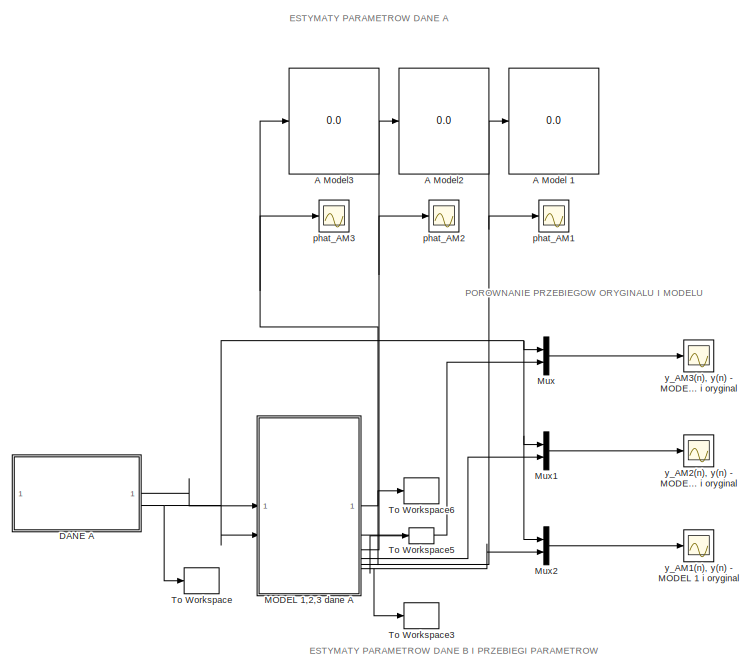
[diagram: root canvas - part 1/2, full width, top band]
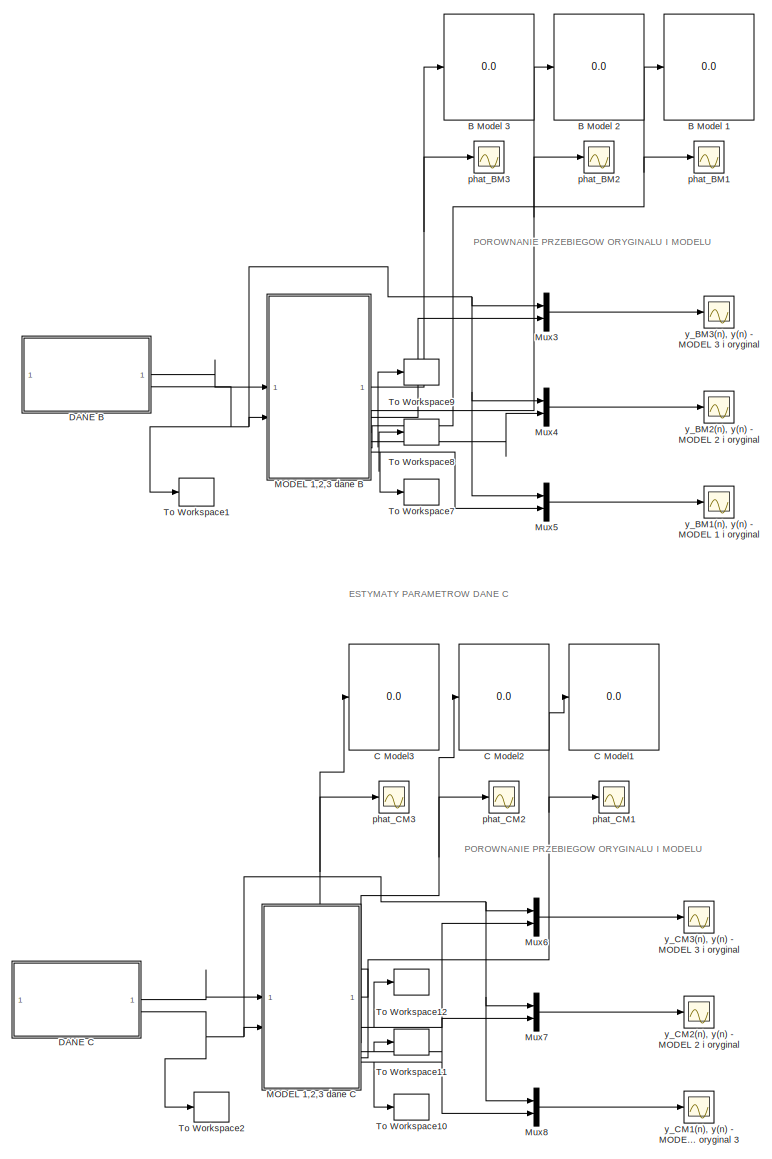
[diagram: root canvas - part 2/2, full width, bottom band]
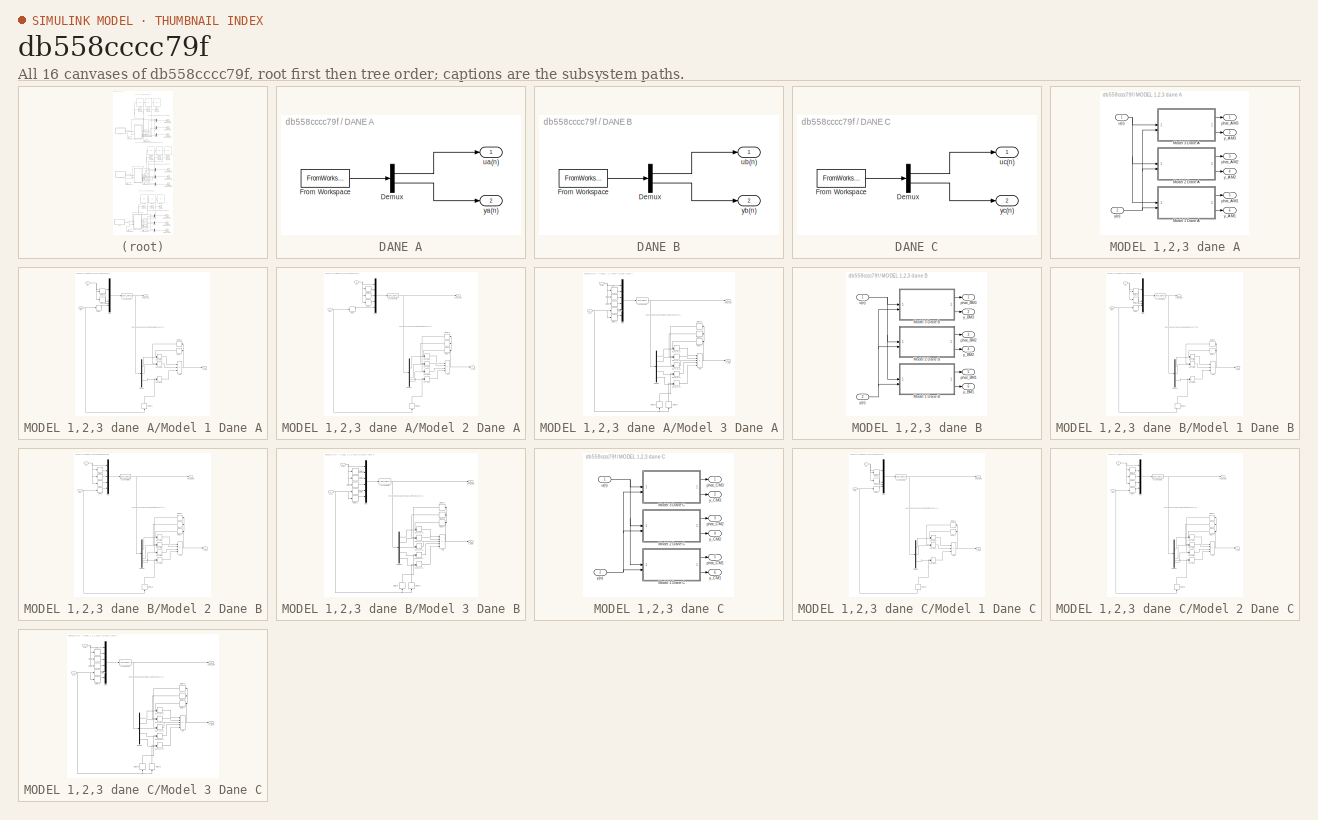
[diagram: thumbnail index - all 16 canvases of the model, root first then tree order]
MODEL mdl_db558cccc79f
KIND model
CONFIG AbsTol = auto
CONFIG EnableMultiTasking = on
CONFIG FixedStep = auto
CONFIG MaxStep = auto
CONFIG MinStep = auto
CONFIG RelTol = 1e-3
CONFIG SampleTimeConstraint = Unconstrained
CONFIG SolverName = FixedStepDiscrete
CONFIG StartTime = 0.0
CONFIG StopTime = tend
BLOCK [Display] A Model 1
  Decimation = 1
BLOCK [Display] A Model2
  Decimation = 1
BLOCK [Display] A Model3
  Decimation = 1
BLOCK [Display] B Model 1
  Decimation = 1
BLOCK [Display] B Model 2
  Decimation = 1
BLOCK [Display] B Model 3
  Decimation = 1
BLOCK [Display] C Model1
  Decimation = 1
BLOCK [Display] C Model2
  Decimation = 1
BLOCK [Display] C Model3
  Decimation = 1
BLOCK [SubSystem] DANE A
BLOCK [Demux] DANE A/Demux
  Outputs = 2
BLOCK [FromWorkspace] DANE A/From Workspace
  SampleTime = Tp
  VariableName = to_simA
BLOCK [Outport] DANE A/ua(n)
BLOCK [Outport] DANE A/ya(n)
  Port = 2
BLOCK [SubSystem] DANE B
BLOCK [Demux] DANE B/Demux
  Outputs = 2
BLOCK [FromWorkspace] DANE B/From Workspace
  SampleTime = Tp
  VariableName = to_simB
BLOCK [Outport] DANE B/ub(n)
BLOCK [Outport] DANE B/yb(n)
  Port = 2
BLOCK [SubSystem] DANE C
BLOCK [Demux] DANE C/Demux
  Outputs = 2
BLOCK [FromWorkspace] DANE C/From Workspace
  SampleTime = Tp
  VariableName = to_simC
BLOCK [Outport] DANE C/uc(n)
BLOCK [Outport] DANE C/yc(n)
  Port = 2
BLOCK [SubSystem] MODEL 1,2,3 dane A
BLOCK [SubSystem] MODEL 1,2,3 dane A/Model 1 Dane A
BLOCK [Sum] MODEL 1,2,3 dane A/Model 1 Dane A/Add
  IconShape = rectangular
  Inputs = --+
BLOCK [Delay] MODEL 1,2,3 dane A/Model 1 Dane A/Delay
  DelayLength = 1
  InitialCondition = 0
  InputPortMap = u0
  SampleTime = Tp
BLOCK [Delay] MODEL 1,2,3 dane A/Model 1 Dane A/Delay2
  DelayLength = 1
  InitialCondition = 0
  InputPortMap = u0
  SampleTime = Tp
BLOCK [Delay] MODEL 1,2,3 dane A/Model 1 Dane A/Delay3
  InitialCondition = 0
  InputPortMap = u0
  SampleTime = Tp
BLOCK [Delay] MODEL 1,2,3 dane A/Model 1 Dane A/Delay5
  DelayLength = 1
  InitialCondition = 0
  InputPortMap = u0
  NameLocation = right
  SampleTime = Tp
BLOCK [Delay] MODEL 1,2,3 dane A/Model 1 Dane A/Delay7
  DelayLength = 1
  InitialCondition = 0
  InputPortMap = u0
  NameLocation = top
  SampleTime = Tp
BLOCK [Delay] MODEL 1,2,3 dane A/Model 1 Dane A/Delay8
  InitialCondition = 0
  InputPortMap = u0
  NameLocation = top
  SampleTime = Tp
BLOCK [Demux] MODEL 1,2,3 dane A/Model 1 Dane A/Demux
  Outputs = 3
BLOCK [MATLABFcn] MODEL 1,2,3 dane A/Model 1 Dane A/KALMAN AM1
  MATLABFcn = Kalman_AM1
  OutputDimensions = 3
BLOCK [Mux] MODEL 1,2,3 dane A/Model 1 Dane A/Mux
  DisplayOption = bar
BLOCK [DotProduct] MODEL 1,2,3 dane A/Model 1 Dane A/p1*y(n-1)
  OutDataTypeStr = Inherit: Inherit via internal rule
BLOCK [DotProduct] MODEL 1,2,3 dane A/Model 1 Dane A/p2*y(n-2)
  OutDataTypeStr = Inherit: Inherit via internal rule
BLOCK [DotProduct] MODEL 1,2,3 dane A/Model 1 Dane A/p4*u(n-1)
  OutDataTypeStr = Inherit: Inherit via internal rule
BLOCK [Outport] MODEL 1,2,3 dane A/Model 1 Dane A/phat_AM1
BLOCK [Inport] MODEL 1,2,3 dane A/Model 1 Dane A/u(n)
BLOCK [Inport] MODEL 1,2,3 dane A/Model 1 Dane A/y(n)
  Port = 2
BLOCK [Outport] MODEL 1,2,3 dane A/Model 1 Dane A/y_AM1
  Port = 2
BLOCK [SubSystem] MODEL 1,2,3 dane A/Model 2 Dane A
BLOCK [Sum] MODEL 1,2,3 dane A/Model 2 Dane A/Add
  IconShape = rectangular
  Inputs = ---+
BLOCK [Delay] MODEL 1,2,3 dane A/Model 2 Dane A/Delay
  DelayLength = 1
  InitialCondition = 0
  InputPortMap = u0
  SampleTime = Tp
BLOCK [Delay] MODEL 1,2,3 dane A/Model 2 Dane A/Delay2
  DelayLength = 1
  InitialCondition = 0
  InputPortMap = u0
  SampleTime = Tp
BLOCK [Delay] MODEL 1,2,3 dane A/Model 2 Dane A/Delay3
  InitialCondition = 0
  InputPortMap = u0
  SampleTime = Tp
BLOCK [Delay] MODEL 1,2,3 dane A/Model 2 Dane A/Delay4
  DelayLength = 3
  InitialCondition = 0
  InputPortMap = u0
  SampleTime = Tp
BLOCK [Delay] MODEL 1,2,3 dane A/Model 2 Dane A/Delay5
  DelayLength = 1
  InitialCondition = 0
  InputPortMap = u0
  NameLocation = right
  SampleTime = Tp
BLOCK [Delay] MODEL 1,2,3 dane A/Model 2 Dane A/Delay7
  DelayLength = 1
  InitialCondition = 0
  InputPortMap = u0
  NameLocation = top
  SampleTime = Tp
BLOCK [Delay] MODEL 1,2,3 dane A/Model 2 Dane A/Delay8
  InitialCondition = 0
  InputPortMap = u0
  NameLocation = top
  SampleTime = Tp
BLOCK [Delay] MODEL 1,2,3 dane A/Model 2 Dane A/Delay9
  DelayLength = 3
  InitialCondition = 0
  InputPortMap = u0
  NameLocation = top
  SampleTime = Tp
BLOCK [Demux] MODEL 1,2,3 dane A/Model 2 Dane A/Demux
BLOCK [MATLABFcn] MODEL 1,2,3 dane A/Model 2 Dane A/KALMAN AM2
  MATLABFcn = Kalman_AM2
  OutputDimensions = 4
BLOCK [Mux] MODEL 1,2,3 dane A/Model 2 Dane A/Mux
  DisplayOption = bar
  Inputs = 5
BLOCK [DotProduct] MODEL 1,2,3 dane A/Model 2 Dane A/p1*y(n-1)
  OutDataTypeStr = Inherit: Inherit via internal rule
BLOCK [DotProduct] MODEL 1,2,3 dane A/Model 2 Dane A/p2*y(n-2)
  OutDataTypeStr = Inherit: Inherit via internal rule
BLOCK [DotProduct] MODEL 1,2,3 dane A/Model 2 Dane A/p3*y(n-3)
  OutDataTypeStr = Inherit: Inherit via internal rule
BLOCK [DotProduct] MODEL 1,2,3 dane A/Model 2 Dane A/p4*u(n-1)
  OutDataTypeStr = Inherit: Inherit via internal rule
BLOCK [Outport] MODEL 1,2,3 dane A/Model 2 Dane A/phat_AM2
BLOCK [Inport] MODEL 1,2,3 dane A/Model 2 Dane A/u(n)
BLOCK [Inport] MODEL 1,2,3 dane A/Model 2 Dane A/y(n)
  Port = 2
BLOCK [Outport] MODEL 1,2,3 dane A/Model 2 Dane A/y_AM2
  Port = 2
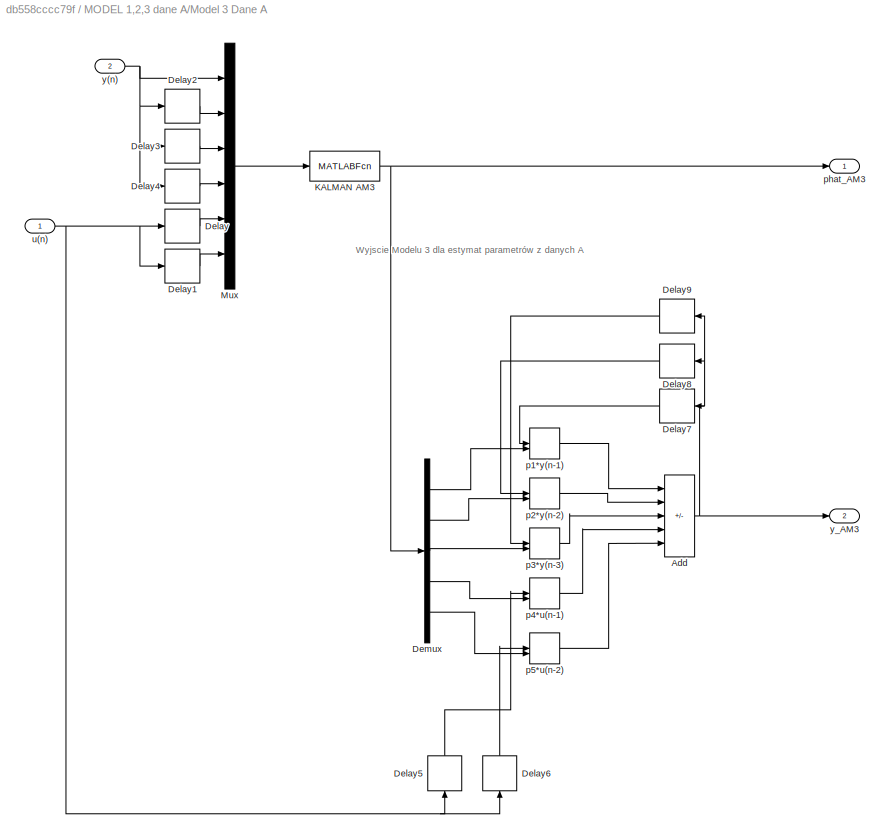
BLOCK [SubSystem] MODEL 1,2,3 dane A/Model 3 Dane A
BLOCK [Sum] MODEL 1,2,3 dane A/Model 3 Dane A/Add
  IconShape = rectangular
  Inputs = ---++
BLOCK [Delay] MODEL 1,2,3 dane A/Model 3 Dane A/Delay
  DelayLength = 1
  InitialCondition = 0
  InputPortMap = u0
  SampleTime = Tp
BLOCK [Delay] MODEL 1,2,3 dane A/Model 3 Dane A/Delay1
  InitialCondition = 0
  InputPortMap = u0
  SampleTime = Tp
BLOCK [Delay] MODEL 1,2,3 dane A/Model 3 Dane A/Delay2
  DelayLength = 1
  InitialCondition = 0
  InputPortMap = u0
  SampleTime = Tp
BLOCK [Delay] MODEL 1,2,3 dane A/Model 3 Dane A/Delay3
  InitialCondition = 0
  InputPortMap = u0
  SampleTime = Tp
BLOCK [Delay] MODEL 1,2,3 dane A/Model 3 Dane A/Delay4
  DelayLength = 3
  InitialCondition = 0
  InputPortMap = u0
  SampleTime = Tp
BLOCK [Delay] MODEL 1,2,3 dane A/Model 3 Dane A/Delay5
  DelayLength = 1
  InitialCondition = 0
  InputPortMap = u0
  NameLocation = right
  SampleTime = Tp
BLOCK [Delay] MODEL 1,2,3 dane A/Model 3 Dane A/Delay6
  InitialCondition = 0
  InputPortMap = u0
  NameLocation = right
  SampleTime = Tp
BLOCK [Delay] MODEL 1,2,3 dane A/Model 3 Dane A/Delay7
  DelayLength = 1
  InitialCondition = 0
  InputPortMap = u0
  NameLocation = top
  SampleTime = Tp
BLOCK [Delay] MODEL 1,2,3 dane A/Model 3 Dane A/Delay8
  InitialCondition = 0
  InputPortMap = u0
  NameLocation = top
  SampleTime = Tp
BLOCK [Delay] MODEL 1,2,3 dane A/Model 3 Dane A/Delay9
  DelayLength = 3
  InitialCondition = 0
  InputPortMap = u0
  NameLocation = top
  SampleTime = Tp
BLOCK [Demux] MODEL 1,2,3 dane A/Model 3 Dane A/Demux
  Outputs = 5
BLOCK [MATLABFcn] MODEL 1,2,3 dane A/Model 3 Dane A/KALMAN AM3
  MATLABFcn = Kalman_AM3
  OutputDimensions = 5
BLOCK [Mux] MODEL 1,2,3 dane A/Model 3 Dane A/Mux
  DisplayOption = bar
  Inputs = 6
BLOCK [DotProduct] MODEL 1,2,3 dane A/Model 3 Dane A/p1*y(n-1)
  OutDataTypeStr = Inherit: Inherit via internal rule
BLOCK [DotProduct] MODEL 1,2,3 dane A/Model 3 Dane A/p2*y(n-2)
  OutDataTypeStr = Inherit: Inherit via internal rule
BLOCK [DotProduct] MODEL 1,2,3 dane A/Model 3 Dane A/p3*y(n-3)
  OutDataTypeStr = Inherit: Inherit via internal rule
BLOCK [DotProduct] MODEL 1,2,3 dane A/Model 3 Dane A/p4*u(n-1)
  OutDataTypeStr = Inherit: Inherit via internal rule
BLOCK [DotProduct] MODEL 1,2,3 dane A/Model 3 Dane A/p5*u(n-2)
  OutDataTypeStr = Inherit: Inherit via internal rule
BLOCK [Outport] MODEL 1,2,3 dane A/Model 3 Dane A/phat_AM3
BLOCK [Inport] MODEL 1,2,3 dane A/Model 3 Dane A/u(n)
BLOCK [Inport] MODEL 1,2,3 dane A/Model 3 Dane A/y(n)
  Port = 2
BLOCK [Outport] MODEL 1,2,3 dane A/Model 3 Dane A/y_AM3
  Port = 2
BLOCK [Outport] MODEL 1,2,3 dane A/phat_AM1
  Port = 5
BLOCK [Outport] MODEL 1,2,3 dane A/phat_AM2
  Port = 3
BLOCK [Outport] MODEL 1,2,3 dane A/phat_AM3
BLOCK [Inport] MODEL 1,2,3 dane A/u(n)
BLOCK [Inport] MODEL 1,2,3 dane A/y(n)
  Port = 2
BLOCK [Outport] MODEL 1,2,3 dane A/y_AM1
  Port = 6
BLOCK [Outport] MODEL 1,2,3 dane A/y_AM2
  Port = 4
BLOCK [Outport] MODEL 1,2,3 dane A/y_AM3
  Port = 2
BLOCK [SubSystem] MODEL 1,2,3 dane B
BLOCK [SubSystem] MODEL 1,2,3 dane B/Model 1 Dane B
BLOCK [Sum] MODEL 1,2,3 dane B/Model 1 Dane B/Add
  IconShape = rectangular
  Inputs = --+
BLOCK [Delay] MODEL 1,2,3 dane B/Model 1 Dane B/Delay
  DelayLength = 1
  InitialCondition = 0
  InputPortMap = u0
  SampleTime = Tp
BLOCK [Delay] MODEL 1,2,3 dane B/Model 1 Dane B/Delay2
  DelayLength = 1
  InitialCondition = 0
  InputPortMap = u0
  SampleTime = Tp
BLOCK [Delay] MODEL 1,2,3 dane B/Model 1 Dane B/Delay3
  InitialCondition = 0
  InputPortMap = u0
  SampleTime = Tp
BLOCK [Delay] MODEL 1,2,3 dane B/Model 1 Dane B/Delay5
  DelayLength = 1
  InitialCondition = 0
  InputPortMap = u0
  NameLocation = right
  SampleTime = Tp
BLOCK [Delay] MODEL 1,2,3 dane B/Model 1 Dane B/Delay7
  DelayLength = 1
  InitialCondition = 0
  InputPortMap = u0
  NameLocation = top
  SampleTime = Tp
BLOCK [Delay] MODEL 1,2,3 dane B/Model 1 Dane B/Delay8
  InitialCondition = 0
  InputPortMap = u0
  NameLocation = top
  SampleTime = Tp
BLOCK [Demux] MODEL 1,2,3 dane B/Model 1 Dane B/Demux
  Outputs = 3
BLOCK [MATLABFcn] MODEL 1,2,3 dane B/Model 1 Dane B/KALMAN BM1
  MATLABFcn = Kalman_BM1
  OutputDimensions = 3
BLOCK [Mux] MODEL 1,2,3 dane B/Model 1 Dane B/Mux
  DisplayOption = bar
BLOCK [DotProduct] MODEL 1,2,3 dane B/Model 1 Dane B/p1*y(n-1)
  OutDataTypeStr = Inherit: Inherit via internal rule
BLOCK [DotProduct] MODEL 1,2,3 dane B/Model 1 Dane B/p2*y(n-2)
  OutDataTypeStr = Inherit: Inherit via internal rule
BLOCK [DotProduct] MODEL 1,2,3 dane B/Model 1 Dane B/p4*u(n-1)
  OutDataTypeStr = Inherit: Inherit via internal rule
BLOCK [Outport] MODEL 1,2,3 dane B/Model 1 Dane B/phat_BM1
BLOCK [Inport] MODEL 1,2,3 dane B/Model 1 Dane B/u(n)
BLOCK [Inport] MODEL 1,2,3 dane B/Model 1 Dane B/y(n)
  Port = 2
BLOCK [Outport] MODEL 1,2,3 dane B/Model 1 Dane B/y_BM1
  Port = 2
BLOCK [SubSystem] MODEL 1,2,3 dane B/Model 2 Dane B
BLOCK [Sum] MODEL 1,2,3 dane B/Model 2 Dane B/Add
  IconShape = rectangular
  Inputs = ---+
BLOCK [Delay] MODEL 1,2,3 dane B/Model 2 Dane B/Delay
  DelayLength = 1
  InitialCondition = 0
  InputPortMap = u0
  SampleTime = Tp
BLOCK [Delay] MODEL 1,2,3 dane B/Model 2 Dane B/Delay2
  DelayLength = 1
  InitialCondition = 0
  InputPortMap = u0
  SampleTime = Tp
BLOCK [Delay] MODEL 1,2,3 dane B/Model 2 Dane B/Delay3
  InitialCondition = 0
  InputPortMap = u0
  SampleTime = Tp
BLOCK [Delay] MODEL 1,2,3 dane B/Model 2 Dane B/Delay4
  DelayLength = 3
  InitialCondition = 0
  InputPortMap = u0
  SampleTime = Tp
BLOCK [Delay] MODEL 1,2,3 dane B/Model 2 Dane B/Delay5
  DelayLength = 1
  InitialCondition = 0
  InputPortMap = u0
  NameLocation = right
  SampleTime = Tp
BLOCK [Delay] MODEL 1,2,3 dane B/Model 2 Dane B/Delay7
  DelayLength = 1
  InitialCondition = 0
  InputPortMap = u0
  NameLocation = top
  SampleTime = Tp
BLOCK [Delay] MODEL 1,2,3 dane B/Model 2 Dane B/Delay8
  InitialCondition = 0
  InputPortMap = u0
  NameLocation = top
  SampleTime = Tp
BLOCK [Delay] MODEL 1,2,3 dane B/Model 2 Dane B/Delay9
  DelayLength = 3
  InitialCondition = 0
  InputPortMap = u0
  NameLocation = top
  SampleTime = Tp
BLOCK [Demux] MODEL 1,2,3 dane B/Model 2 Dane B/Demux
BLOCK [MATLABFcn] MODEL 1,2,3 dane B/Model 2 Dane B/KALMAN BM2
  MATLABFcn = Kalman_BM2
  OutputDimensions = 4
BLOCK [Mux] MODEL 1,2,3 dane B/Model 2 Dane B/Mux
  DisplayOption = bar
  Inputs = 5
BLOCK [DotProduct] MODEL 1,2,3 dane B/Model 2 Dane B/p1*y(n-1)
  OutDataTypeStr = Inherit: Inherit via internal rule
BLOCK [DotProduct] MODEL 1,2,3 dane B/Model 2 Dane B/p2*y(n-2)
  OutDataTypeStr = Inherit: Inherit via internal rule
BLOCK [DotProduct] MODEL 1,2,3 dane B/Model 2 Dane B/p3*y(n-3)
  OutDataTypeStr = Inherit: Inherit via internal rule
BLOCK [DotProduct] MODEL 1,2,3 dane B/Model 2 Dane B/p4*u(n-1)
  OutDataTypeStr = Inherit: Inherit via internal rule
BLOCK [Outport] MODEL 1,2,3 dane B/Model 2 Dane B/phat_BM2
BLOCK [Inport] MODEL 1,2,3 dane B/Model 2 Dane B/u(n)
BLOCK [Inport] MODEL 1,2,3 dane B/Model 2 Dane B/y(n)
  Port = 2
BLOCK [Outport] MODEL 1,2,3 dane B/Model 2 Dane B/y_BM2
  Port = 2
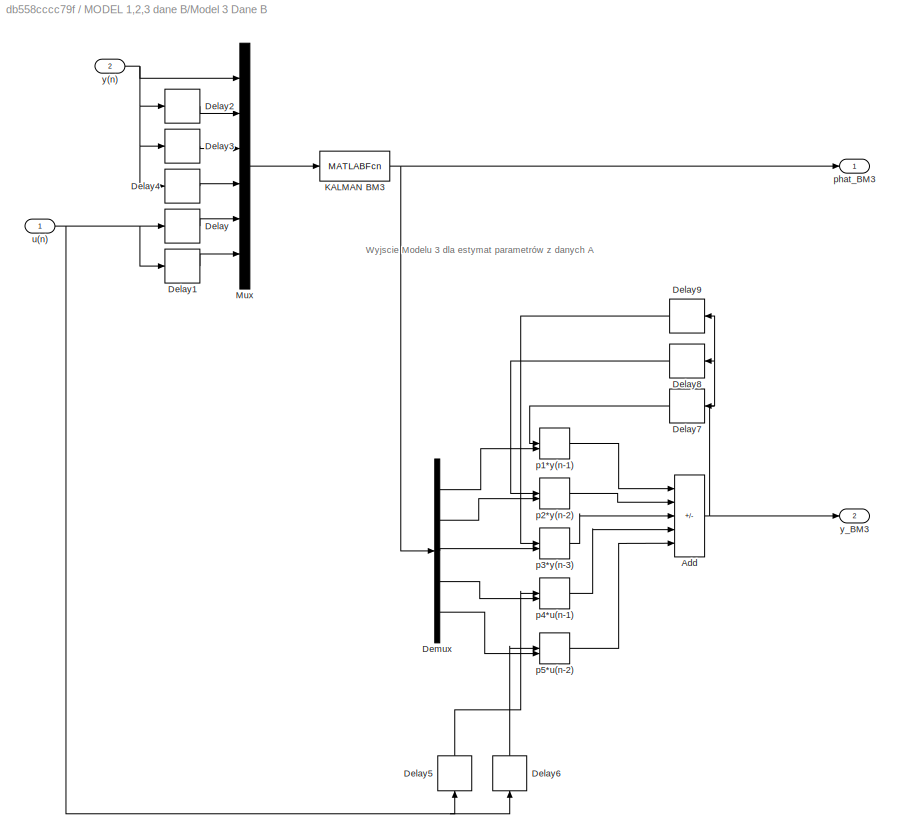
BLOCK [SubSystem] MODEL 1,2,3 dane B/Model 3 Dane B
BLOCK [Sum] MODEL 1,2,3 dane B/Model 3 Dane B/Add
  IconShape = rectangular
  Inputs = ---++
BLOCK [Delay] MODEL 1,2,3 dane B/Model 3 Dane B/Delay
  DelayLength = 1
  InitialCondition = 0
  InputPortMap = u0
  SampleTime = Tp
BLOCK [Delay] MODEL 1,2,3 dane B/Model 3 Dane B/Delay1
  InitialCondition = 0
  InputPortMap = u0
  SampleTime = Tp
BLOCK [Delay] MODEL 1,2,3 dane B/Model 3 Dane B/Delay2
  DelayLength = 1
  InitialCondition = 0
  InputPortMap = u0
  SampleTime = Tp
BLOCK [Delay] MODEL 1,2,3 dane B/Model 3 Dane B/Delay3
  InitialCondition = 0
  InputPortMap = u0
  SampleTime = Tp
BLOCK [Delay] MODEL 1,2,3 dane B/Model 3 Dane B/Delay4
  DelayLength = 3
  InitialCondition = 0
  InputPortMap = u0
  SampleTime = Tp
BLOCK [Delay] MODEL 1,2,3 dane B/Model 3 Dane B/Delay5
  DelayLength = 1
  InitialCondition = 0
  InputPortMap = u0
  NameLocation = right
  SampleTime = Tp
BLOCK [Delay] MODEL 1,2,3 dane B/Model 3 Dane B/Delay6
  InitialCondition = 0
  InputPortMap = u0
  NameLocation = right
  SampleTime = Tp
BLOCK [Delay] MODEL 1,2,3 dane B/Model 3 Dane B/Delay7
  DelayLength = 1
  InitialCondition = 0
  InputPortMap = u0
  NameLocation = top
  SampleTime = Tp
BLOCK [Delay] MODEL 1,2,3 dane B/Model 3 Dane B/Delay8
  InitialCondition = 0
  InputPortMap = u0
  NameLocation = top
  SampleTime = Tp
BLOCK [Delay] MODEL 1,2,3 dane B/Model 3 Dane B/Delay9
  DelayLength = 3
  InitialCondition = 0
  InputPortMap = u0
  NameLocation = top
  SampleTime = Tp
BLOCK [Demux] MODEL 1,2,3 dane B/Model 3 Dane B/Demux
  Outputs = 5
BLOCK [MATLABFcn] MODEL 1,2,3 dane B/Model 3 Dane B/KALMAN BM3
  MATLABFcn = Kalman_BM3
  OutputDimensions = 5
BLOCK [Mux] MODEL 1,2,3 dane B/Model 3 Dane B/Mux
  DisplayOption = bar
  Inputs = 6
BLOCK [DotProduct] MODEL 1,2,3 dane B/Model 3 Dane B/p1*y(n-1)
  OutDataTypeStr = Inherit: Inherit via internal rule
BLOCK [DotProduct] MODEL 1,2,3 dane B/Model 3 Dane B/p2*y(n-2)
  OutDataTypeStr = Inherit: Inherit via internal rule
BLOCK [DotProduct] MODEL 1,2,3 dane B/Model 3 Dane B/p3*y(n-3)
  OutDataTypeStr = Inherit: Inherit via internal rule
BLOCK [DotProduct] MODEL 1,2,3 dane B/Model 3 Dane B/p4*u(n-1)
  OutDataTypeStr = Inherit: Inherit via internal rule
BLOCK [DotProduct] MODEL 1,2,3 dane B/Model 3 Dane B/p5*u(n-2)
  OutDataTypeStr = Inherit: Inherit via internal rule
BLOCK [Outport] MODEL 1,2,3 dane B/Model 3 Dane B/phat_BM3
BLOCK [Inport] MODEL 1,2,3 dane B/Model 3 Dane B/u(n)
BLOCK [Inport] MODEL 1,2,3 dane B/Model 3 Dane B/y(n)
  Port = 2
BLOCK [Outport] MODEL 1,2,3 dane B/Model 3 Dane B/y_BM3
  Port = 2
BLOCK [Outport] MODEL 1,2,3 dane B/phat_BM1
  Port = 5
BLOCK [Outport] MODEL 1,2,3 dane B/phat_BM2
  Port = 3
BLOCK [Outport] MODEL 1,2,3 dane B/phat_BM3
BLOCK [Inport] MODEL 1,2,3 dane B/u(n)
BLOCK [Inport] MODEL 1,2,3 dane B/y(n)
  Port = 2
BLOCK [Outport] MODEL 1,2,3 dane B/y_BM1
  Port = 6
BLOCK [Outport] MODEL 1,2,3 dane B/y_BM2
  Port = 4
BLOCK [Outport] MODEL 1,2,3 dane B/y_BM3
  Port = 2
BLOCK [SubSystem] MODEL 1,2,3 dane C
BLOCK [SubSystem] MODEL 1,2,3 dane C/Model 1 Dane C
BLOCK [Sum] MODEL 1,2,3 dane C/Model 1 Dane C/Add
  IconShape = rectangular
  Inputs = --+
BLOCK [Delay] MODEL 1,2,3 dane C/Model 1 Dane C/Delay
  DelayLength = 1
  InitialCondition = 0
  InputPortMap = u0
  SampleTime = Tp
BLOCK [Delay] MODEL 1,2,3 dane C/Model 1 Dane C/Delay2
  DelayLength = 1
  InitialCondition = 0
  InputPortMap = u0
  SampleTime = Tp
BLOCK [Delay] MODEL 1,2,3 dane C/Model 1 Dane C/Delay3
  InitialCondition = 0
  InputPortMap = u0
  SampleTime = Tp
BLOCK [Delay] MODEL 1,2,3 dane C/Model 1 Dane C/Delay5
  DelayLength = 1
  InitialCondition = 0
  InputPortMap = u0
  NameLocation = right
  SampleTime = Tp
BLOCK [Delay] MODEL 1,2,3 dane C/Model 1 Dane C/Delay7
  DelayLength = 1
  InitialCondition = 0
  InputPortMap = u0
  NameLocation = top
  SampleTime = Tp
BLOCK [Delay] MODEL 1,2,3 dane C/Model 1 Dane C/Delay8
  InitialCondition = 0
  InputPortMap = u0
  NameLocation = top
  SampleTime = Tp
BLOCK [Demux] MODEL 1,2,3 dane C/Model 1 Dane C/Demux
  Outputs = 3
BLOCK [MATLABFcn] MODEL 1,2,3 dane C/Model 1 Dane C/KALMAN CM1
  MATLABFcn = Kalman_CM1
  OutputDimensions = 3
BLOCK [Mux] MODEL 1,2,3 dane C/Model 1 Dane C/Mux
  DisplayOption = bar
BLOCK [DotProduct] MODEL 1,2,3 dane C/Model 1 Dane C/p1*y(n-1)
  OutDataTypeStr = Inherit: Inherit via internal rule
BLOCK [DotProduct] MODEL 1,2,3 dane C/Model 1 Dane C/p2*y(n-2)
  OutDataTypeStr = Inherit: Inherit via internal rule
BLOCK [DotProduct] MODEL 1,2,3 dane C/Model 1 Dane C/p4*u(n-1)
  OutDataTypeStr = Inherit: Inherit via internal rule
BLOCK [Outport] MODEL 1,2,3 dane C/Model 1 Dane C/phat_CM1
BLOCK [Inport] MODEL 1,2,3 dane C/Model 1 Dane C/u(n)
BLOCK [Inport] MODEL 1,2,3 dane C/Model 1 Dane C/y(n)
  Port = 2
BLOCK [Outport] MODEL 1,2,3 dane C/Model 1 Dane C/y_CM1
  Port = 2
BLOCK [SubSystem] MODEL 1,2,3 dane C/Model 2 Dane C
BLOCK [Sum] MODEL 1,2,3 dane C/Model 2 Dane C/Add
  IconShape = rectangular
  Inputs = ---+
BLOCK [Delay] MODEL 1,2,3 dane C/Model 2 Dane C/Delay
  DelayLength = 1
  InitialCondition = 0
  InputPortMap = u0
  SampleTime = Tp
BLOCK [Delay] MODEL 1,2,3 dane C/Model 2 Dane C/Delay2
  DelayLength = 1
  InitialCondition = 0
  InputPortMap = u0
  SampleTime = Tp
BLOCK [Delay] MODEL 1,2,3 dane C/Model 2 Dane C/Delay3
  InitialCondition = 0
  InputPortMap = u0
  SampleTime = Tp
BLOCK [Delay] MODEL 1,2,3 dane C/Model 2 Dane C/Delay4
  DelayLength = 3
  InitialCondition = 0
  InputPortMap = u0
  SampleTime = Tp
BLOCK [Delay] MODEL 1,2,3 dane C/Model 2 Dane C/Delay5
  DelayLength = 1
  InitialCondition = 0
  InputPortMap = u0
  NameLocation = right
  SampleTime = Tp
BLOCK [Delay] MODEL 1,2,3 dane C/Model 2 Dane C/Delay7
  DelayLength = 1
  InitialCondition = 0
  InputPortMap = u0
  NameLocation = top
  SampleTime = Tp
BLOCK [Delay] MODEL 1,2,3 dane C/Model 2 Dane C/Delay8
  InitialCondition = 0
  InputPortMap = u0
  NameLocation = top
  SampleTime = Tp
BLOCK [Delay] MODEL 1,2,3 dane C/Model 2 Dane C/Delay9
  DelayLength = 3
  InitialCondition = 0
  InputPortMap = u0
  NameLocation = top
  SampleTime = Tp
BLOCK [Demux] MODEL 1,2,3 dane C/Model 2 Dane C/Demux
BLOCK [MATLABFcn] MODEL 1,2,3 dane C/Model 2 Dane C/KALMAN CM2
  MATLABFcn = Kalman_CM2
  OutputDimensions = 4
BLOCK [Mux] MODEL 1,2,3 dane C/Model 2 Dane C/Mux
  DisplayOption = bar
  Inputs = 5
BLOCK [DotProduct] MODEL 1,2,3 dane C/Model 2 Dane C/p1*y(n-1)
  OutDataTypeStr = Inherit: Inherit via internal rule
BLOCK [DotProduct] MODEL 1,2,3 dane C/Model 2 Dane C/p2*y(n-2)
  OutDataTypeStr = Inherit: Inherit via internal rule
BLOCK [DotProduct] MODEL 1,2,3 dane C/Model 2 Dane C/p3*y(n-3)
  OutDataTypeStr = Inherit: Inherit via internal rule
BLOCK [DotProduct] MODEL 1,2,3 dane C/Model 2 Dane C/p4*u(n-1)
  OutDataTypeStr = Inherit: Inherit via internal rule
BLOCK [Outport] MODEL 1,2,3 dane C/Model 2 Dane C/phat_CM2
BLOCK [Inport] MODEL 1,2,3 dane C/Model 2 Dane C/u(n)
BLOCK [Inport] MODEL 1,2,3 dane C/Model 2 Dane C/y(n)
  Port = 2
BLOCK [Outport] MODEL 1,2,3 dane C/Model 2 Dane C/y_CM2
  Port = 2
BLOCK [SubSystem] MODEL 1,2,3 dane C/Model 3 Dane C
BLOCK [Sum] MODEL 1,2,3 dane C/Model 3 Dane C/Add
  IconShape = rectangular
  Inputs = ---++
BLOCK [Delay] MODEL 1,2,3 dane C/Model 3 Dane C/Delay
  DelayLength = 1
  InitialCondition = 0
  InputPortMap = u0
  SampleTime = Tp
BLOCK [Delay] MODEL 1,2,3 dane C/Model 3 Dane C/Delay1
  InitialCondition = 0
  InputPortMap = u0
  SampleTime = Tp
BLOCK [Delay] MODEL 1,2,3 dane C/Model 3 Dane C/Delay2
  DelayLength = 1
  InitialCondition = 0
  InputPortMap = u0
  SampleTime = Tp
BLOCK [Delay] MODEL 1,2,3 dane C/Model 3 Dane C/Delay3
  InitialCondition = 0
  InputPortMap = u0
  SampleTime = Tp
BLOCK [Delay] MODEL 1,2,3 dane C/Model 3 Dane C/Delay4
  DelayLength = 3
  InitialCondition = 0
  InputPortMap = u0
  SampleTime = Tp
BLOCK [Delay] MODEL 1,2,3 dane C/Model 3 Dane C/Delay5
  DelayLength = 1
  InitialCondition = 0
  InputPortMap = u0
  NameLocation = right
  SampleTime = Tp
BLOCK [Delay] MODEL 1,2,3 dane C/Model 3 Dane C/Delay6
  InitialCondition = 0
  InputPortMap = u0
  NameLocation = right
  SampleTime = Tp
BLOCK [Delay] MODEL 1,2,3 dane C/Model 3 Dane C/Delay7
  DelayLength = 1
  InitialCondition = 0
  InputPortMap = u0
  NameLocation = top
  SampleTime = Tp
BLOCK [Delay] MODEL 1,2,3 dane C/Model 3 Dane C/Delay8
  InitialCondition = 0
  InputPortMap = u0
  NameLocation = top
  SampleTime = Tp
BLOCK [Delay] MODEL 1,2,3 dane C/Model 3 Dane C/Delay9
  DelayLength = 3
  InitialCondition = 0
  InputPortMap = u0
  NameLocation = top
  SampleTime = Tp
BLOCK [Demux] MODEL 1,2,3 dane C/Model 3 Dane C/Demux
  Outputs = 5
BLOCK [MATLABFcn] MODEL 1,2,3 dane C/Model 3 Dane C/KALMAN CM3
  MATLABFcn = Kalman_CM3
  OutputDimensions = 5
BLOCK [Mux] MODEL 1,2,3 dane C/Model 3 Dane C/Mux
  DisplayOption = bar
  Inputs = 6
BLOCK [DotProduct] MODEL 1,2,3 dane C/Model 3 Dane C/p1*y(n-1)
  OutDataTypeStr = Inherit: Inherit via internal rule
BLOCK [DotProduct] MODEL 1,2,3 dane C/Model 3 Dane C/p2*y(n-2)
  OutDataTypeStr = Inherit: Inherit via internal rule
BLOCK [DotProduct] MODEL 1,2,3 dane C/Model 3 Dane C/p3*y(n-3)
  OutDataTypeStr = Inherit: Inherit via internal rule
BLOCK [DotProduct] MODEL 1,2,3 dane C/Model 3 Dane C/p4*u(n-1)
  OutDataTypeStr = Inherit: Inherit via internal rule
BLOCK [DotProduct] MODEL 1,2,3 dane C/Model 3 Dane C/p5*u(n-2)
  OutDataTypeStr = Inherit: Inherit via internal rule
BLOCK [Outport] MODEL 1,2,3 dane C/Model 3 Dane C/phat_CM3
BLOCK [Inport] MODEL 1,2,3 dane C/Model 3 Dane C/u(n)
BLOCK [Inport] MODEL 1,2,3 dane C/Model 3 Dane C/y(n)
  Port = 2
BLOCK [Outport] MODEL 1,2,3 dane C/Model 3 Dane C/y_CM3
  Port = 2
BLOCK [Outport] MODEL 1,2,3 dane C/phat_CM1
  Port = 5
BLOCK [Outport] MODEL 1,2,3 dane C/phat_CM2
  Port = 3
BLOCK [Outport] MODEL 1,2,3 dane C/phat_CM3
BLOCK [Inport] MODEL 1,2,3 dane C/u(n)
BLOCK [Inport] MODEL 1,2,3 dane C/y(n)
  Port = 2
BLOCK [Outport] MODEL 1,2,3 dane C/y_CM1
  Port = 6
BLOCK [Outport] MODEL 1,2,3 dane C/y_CM2
  Port = 4
BLOCK [Outport] MODEL 1,2,3 dane C/y_CM3
  Port = 2
BLOCK [Mux] Mux
  DisplayOption = bar
  Inputs = 2
BLOCK [Mux] Mux1
  DisplayOption = bar
  Inputs = 2
BLOCK [Mux] Mux2
  DisplayOption = bar
  Inputs = 2
BLOCK [Mux] Mux3
  DisplayOption = bar
  Inputs = 2
BLOCK [Mux] Mux4
  DisplayOption = bar
  Inputs = 2
BLOCK [Mux] Mux5
  DisplayOption = bar
  Inputs = 2
BLOCK [Mux] Mux6
  DisplayOption = bar
  Inputs = 2
BLOCK [Mux] Mux7
  DisplayOption = bar
  Inputs = 2
BLOCK [Mux] Mux8
  DisplayOption = bar
  Inputs = 2
BLOCK [ToWorkspace] To Workspace
  FixptAsFi = on
  MaxDataPoints = inf
  SampleTime = Tp
  Save2DSignal = 2-D array (concatenate along first dimension)
  VariableName = ya
BLOCK [ToWorkspace] To Workspace1
  FixptAsFi = on
  MaxDataPoints = inf
  SampleTime = Tp
  Save2DSignal = 2-D array (concatenate along first dimension)
  VariableName = yb
BLOCK [ToWorkspace] To Workspace10
  FixptAsFi = on
  MaxDataPoints = inf
  SampleTime = Tp
  Save2DSignal = 2-D array (concatenate along first dimension)
  VariableName = yCM1
BLOCK [ToWorkspace] To Workspace11
  FixptAsFi = on
  MaxDataPoints = inf
  SampleTime = Tp
  Save2DSignal = 2-D array (concatenate along first dimension)
  VariableName = yCM2
BLOCK [ToWorkspace] To Workspace12
  FixptAsFi = on
  MaxDataPoints = inf
  SampleTime = Tp
  Save2DSignal = 2-D array (concatenate along first dimension)
  VariableName = yCM3
BLOCK [ToWorkspace] To Workspace2
  FixptAsFi = on
  MaxDataPoints = inf
  SampleTime = Tp
  Save2DSignal = 2-D array (concatenate along first dimension)
  VariableName = yc
BLOCK [ToWorkspace] To Workspace3
  FixptAsFi = on
  MaxDataPoints = inf
  SampleTime = Tp
  Save2DSignal = 2-D array (concatenate along first dimension)
  VariableName = yAM1
BLOCK [ToWorkspace] To Workspace5
  FixptAsFi = on
  MaxDataPoints = inf
  SampleTime = Tp
  Save2DSignal = 2-D array (concatenate along first dimension)
  VariableName = yAM2
BLOCK [ToWorkspace] To Workspace6
  FixptAsFi = on
  MaxDataPoints = inf
  SampleTime = Tp
  Save2DSignal = 2-D array (concatenate along first dimension)
  VariableName = yAM3
BLOCK [ToWorkspace] To Workspace7
  FixptAsFi = on
  MaxDataPoints = inf
  SampleTime = Tp
  Save2DSignal = 2-D array (concatenate along first dimension)
  VariableName = yBM1
BLOCK [ToWorkspace] To Workspace8
  FixptAsFi = on
  MaxDataPoints = inf
  SampleTime = Tp
  Save2DSignal = 2-D array (concatenate along first dimension)
  VariableName = yBM2
BLOCK [ToWorkspace] To Workspace9
  FixptAsFi = on
  MaxDataPoints = inf
  SampleTime = Tp
  Save2DSignal = 2-D array (concatenate along first dimension)
  VariableName = yBM3
BLOCK [Scope] phat_AM1
  Floating = off
  NumInputPorts = 1
  ScopeSpecificationString = Simulink.scopes.TimeScopeBlockCfg('CurrentConfiguration', extmgr.ConfigurationSet(extmgr.Configuration('Core','General UI',true),extmgr.Configuration('Core','Source UI',true),extmgr.Configuration('Sources','WiredSimulink',true,'DataLoggingVariableName','ScopeData13'),extmgr.Configuration('Visuals','Time Domain',true,'SerializedDisplays',{struct('MinYLimReal','-0.91037','MaxYLimReal','0.31554','YLa...<+1432ch>
BLOCK [Scope] phat_AM2
  Floating = off
  NumInputPorts = 1
  ScopeSpecificationString = Simulink.scopes.TimeScopeBlockCfg('CurrentConfiguration', extmgr.ConfigurationSet(extmgr.Configuration('Core','General UI',true),extmgr.Configuration('Core','Source UI',true),extmgr.Configuration('Sources','WiredSimulink',true,'DataLoggingVariableName','ScopeData14'),extmgr.Configuration('Visuals','Time Domain',true,'SerializedDisplays',{struct('MinYLimReal','-0.9293','MaxYLimReal','0.297','YLabel...<+1449ch>
BLOCK [Scope] phat_AM3
  Floating = off
  NumInputPorts = 1
  ScopeSpecificationString = Simulink.scopes.TimeScopeBlockCfg('CurrentConfiguration', extmgr.ConfigurationSet(extmgr.Configuration('Core','General UI',true),extmgr.Configuration('Core','Source UI',true),extmgr.Configuration('Sources','WiredSimulink',true,'DataLoggingVariableName','ScopeData12'),extmgr.Configuration('Visuals','Time Domain',true,'SerializedDisplays',{struct('MinYLimReal','-0.64675','MaxYLimReal','0.2398','YLab...<+1509ch>
BLOCK [Scope] phat_BM1
  Floating = off
  NumInputPorts = 1
  ScopeSpecificationString = Simulink.scopes.TimeScopeBlockCfg('CurrentConfiguration', extmgr.ConfigurationSet(extmgr.Configuration('Core','General UI',true),extmgr.Configuration('Core','Source UI',true),extmgr.Configuration('Sources','WiredSimulink',true,'DataLoggingVariableName','ScopeData10'),extmgr.Configuration('Visuals','Time Domain',true,'SerializedDisplays',{struct('MinYLimReal','-0.96037','MaxYLimReal','0.38325','YLa...<+1557ch>
BLOCK [Scope] phat_BM2
  Floating = off
  NumInputPorts = 1
  ScopeSpecificationString = Simulink.scopes.TimeScopeBlockCfg('CurrentConfiguration', extmgr.ConfigurationSet(extmgr.Configuration('Core','General UI',true),extmgr.Configuration('Core','Source UI',true),extmgr.Configuration('Sources','WiredSimulink',true,'DataLoggingVariableName','ScopeData11'),extmgr.Configuration('Visuals','Time Domain',true,'SerializedDisplays',{struct('MinYLimReal','-0.98918','MaxYLimReal','0.35581','YLa...<+1457ch>
BLOCK [Scope] phat_BM3
  Floating = off
  NumInputPorts = 1
  ScopeSpecificationString = Simulink.scopes.TimeScopeBlockCfg('CurrentConfiguration', extmgr.ConfigurationSet(extmgr.Configuration('Core','General UI',true),extmgr.Configuration('Core','Source UI',true),extmgr.Configuration('Sources','WiredSimulink',true,'DataLoggingVariableName','ScopeData9'),extmgr.Configuration('Visuals','Time Domain',true,'SerializedDisplays',{struct('MinYLimReal','-0.93715','MaxYLimReal','0.36763','YLab...<+1510ch>
BLOCK [Scope] phat_CM1
  Floating = off
  NumInputPorts = 1
  ScopeSpecificationString = Simulink.scopes.TimeScopeBlockCfg('CurrentConfiguration', extmgr.ConfigurationSet(extmgr.Configuration('Core','General UI',true),extmgr.Configuration('Core','Source UI',true),extmgr.Configuration('Sources','WiredSimulink',true,'DataLoggingVariableName','ScopeData16'),extmgr.Configuration('Visuals','Time Domain',true),extmgr.Configuration('Tools','Plot Navigation',true),extmgr.Configuration('Tools'...<+41ch>
BLOCK [Scope] phat_CM2
  Floating = off
  NumInputPorts = 1
  ScopeSpecificationString = Simulink.scopes.TimeScopeBlockCfg('CurrentConfiguration', extmgr.ConfigurationSet(extmgr.Configuration('Core','General UI',true),extmgr.Configuration('Core','Source UI',true),extmgr.Configuration('Sources','WiredSimulink',true,'DataLoggingVariableName','ScopeData17'),extmgr.Configuration('Visuals','Time Domain',true),extmgr.Configuration('Tools','Plot Navigation',true),extmgr.Configuration('Tools'...<+41ch>
BLOCK [Scope] phat_CM3
  Floating = off
  NumInputPorts = 1
  ScopeSpecificationString = Simulink.scopes.TimeScopeBlockCfg('CurrentConfiguration', extmgr.ConfigurationSet(extmgr.Configuration('Core','General UI',true),extmgr.Configuration('Core','Source UI',true),extmgr.Configuration('Sources','WiredSimulink',true,'DataLoggingVariableName','ScopeData15'),extmgr.Configuration('Visuals','Time Domain',true,'SerializedDisplays',{struct('MinYLimReal','-0.77538','MaxYLimReal','0.20718','YLa...<+1510ch>
BLOCK [Scope] y_AM1(n), y(n) - MODEL 1 i oryginal
  Floating = off
  NumInputPorts = 1
  ScopeSpecificationString = Simulink.scopes.TimeScopeBlockCfg('CurrentConfiguration', extmgr.ConfigurationSet(extmgr.Configuration('Core','General UI',true),extmgr.Configuration('Core','Source UI',true),extmgr.Configuration('Sources','WiredSimulink',true,'DataLoggingVariableName','ScopeData2'),extmgr.Configuration('Visuals','Time Domain',true,'SerializedDisplays',{struct('MinYLimReal','-2.00134','MaxYLimReal','1.97205','YLab...<+1421ch>
BLOCK [Scope] y_AM2(n), y(n) - MODEL 2 i oryginal 
  Floating = off
  NumInputPorts = 1
  ScopeSpecificationString = Simulink.scopes.TimeScopeBlockCfg('CurrentConfiguration', extmgr.ConfigurationSet(extmgr.Configuration('Core','General UI',true),extmgr.Configuration('Core','Source UI',true),extmgr.Configuration('Sources','WiredSimulink',true,'DataLoggingVariableName','ScopeData1'),extmgr.Configuration('Visuals','Time Domain',true,'SerializedDisplays',{struct('MinYLimReal','-2.00134','MaxYLimReal','1.97205','YLab...<+1488ch>
BLOCK [Scope] y_AM3(n), y(n) - MODEL 3 i oryginal 
  Floating = off
  NumInputPorts = 1
  ScopeSpecificationString = Simulink.scopes.TimeScopeBlockCfg('CurrentConfiguration', extmgr.ConfigurationSet(extmgr.Configuration('Core','General UI',true),extmgr.Configuration('Core','Source UI',true),extmgr.Configuration('Sources','WiredSimulink',true),extmgr.Configuration('Visuals','Time Domain',true,'SerializedDisplays',{struct('MinYLimReal','-2.00134','MaxYLimReal','1.97205','YLabelReal','','MinYLimMag','0.00000','MaxY...<+1381ch>
BLOCK [Scope] y_BM1(n), y(n) - MODEL 1 i oryginal
  Floating = off
  NumInputPorts = 1
  ScopeSpecificationString = Simulink.scopes.TimeScopeBlockCfg('CurrentConfiguration', extmgr.ConfigurationSet(extmgr.Configuration('Core','General UI',true),extmgr.Configuration('Core','Source UI',true),extmgr.Configuration('Sources','WiredSimulink',true,'DataLoggingVariableName','ScopeData3'),extmgr.Configuration('Visuals','Time Domain',true,'SerializedDisplays',{struct('MinYLimReal','-1.54017','MaxYLimReal','1.66428','YLab...<+1419ch>
BLOCK [Scope] y_BM2(n), y(n) - MODEL 2 i oryginal
  Floating = off
  NumInputPorts = 1
  ScopeSpecificationString = Simulink.scopes.TimeScopeBlockCfg('CurrentConfiguration', extmgr.ConfigurationSet(extmgr.Configuration('Core','General UI',true),extmgr.Configuration('Core','Source UI',true),extmgr.Configuration('Sources','WiredSimulink',true,'DataLoggingVariableName','ScopeData4'),extmgr.Configuration('Visuals','Time Domain',true,'SerializedDisplays',{struct('MinYLimReal','-1.5451','MaxYLimReal','1.67877','YLabe...<+1416ch>
BLOCK [Scope] y_BM3(n), y(n) - MODEL 3 i oryginal
  Floating = off
  NumInputPorts = 1
  ScopeSpecificationString = Simulink.scopes.TimeScopeBlockCfg('CurrentConfiguration', extmgr.ConfigurationSet(extmgr.Configuration('Core','General UI',true),extmgr.Configuration('Core','Source UI',true),extmgr.Configuration('Sources','WiredSimulink',true,'DataLoggingVariableName','ScopeData5'),extmgr.Configuration('Visuals','Time Domain',true,'SerializedDisplays',{struct('MinYLimReal','-1.54361','MaxYLimReal','1.65095','YLab...<+1418ch>
BLOCK [Scope] y_CM1(n), y(n) - MODEL 1 i oryginal 3
  Floating = off
  NumInputPorts = 1
  ScopeSpecificationString = Simulink.scopes.TimeScopeBlockCfg('CurrentConfiguration', extmgr.ConfigurationSet(extmgr.Configuration('Core','General UI',true),extmgr.Configuration('Core','Source UI',true),extmgr.Configuration('Sources','WiredSimulink',true,'DataLoggingVariableName','ScopeData6'),extmgr.Configuration('Visuals','Time Domain',true,'SerializedDisplays',{struct('MinYLimReal','-2.20367','MaxYLimReal','2.1817','YLabe...<+1388ch>
BLOCK [Scope] y_CM2(n), y(n) - MODEL 2 i oryginal
  Floating = off
  NumInputPorts = 1
  ScopeSpecificationString = Simulink.scopes.TimeScopeBlockCfg('CurrentConfiguration', extmgr.ConfigurationSet(extmgr.Configuration('Core','General UI',true),extmgr.Configuration('Core','Source UI',true),extmgr.Configuration('Sources','WiredSimulink',true,'DataLoggingVariableName','ScopeData7'),extmgr.Configuration('Visuals','Time Domain',true,'SerializedDisplays',{struct('MinYLimReal','-2.20367','MaxYLimReal','2.1817','YLabe...<+1416ch>
BLOCK [Scope] y_CM3(n), y(n) - MODEL 3 i oryginal
  Floating = off
  NumInputPorts = 1
  ScopeSpecificationString = Simulink.scopes.TimeScopeBlockCfg('CurrentConfiguration', extmgr.ConfigurationSet(extmgr.Configuration('Core','General UI',true),extmgr.Configuration('Core','Source UI',true),extmgr.Configuration('Sources','WiredSimulink',true,'DataLoggingVariableName','ScopeData8'),extmgr.Configuration('Visuals','Time Domain',true,'SerializedDisplays',{struct('MinYLimReal','-2.20367','MaxYLimReal','2.1817','YLabe...<+1433ch>
ANNOTATION (root): ESTYMATY PARAMETROW DANE A
ANNOTATION (root): ESTYMATY PARAMETROW DANE B I PRZEBIEGI PARAMETROW
ANNOTATION (root): ESTYMATY PARAMETROW DANE C
ANNOTATION (root): POROWNANIE PRZEBIEGOW ORYGINALU I MODELU
ANNOTATION MODEL 1,2,3 dane A/Model 1 Dane A: Wyjscie Modelu 3 dla estymat parametrów z danych A
ANNOTATION MODEL 1,2,3 dane A/Model 2 Dane A: Wyjscie Modelu 3 dla estymat parametrów z danych A
ANNOTATION MODEL 1,2,3 dane A/Model 3 Dane A: Wyjscie Modelu 3 dla estymat parametrów z danych A
ANNOTATION MODEL 1,2,3 dane B/Model 1 Dane B: Wyjscie Modelu 1 dla estymat parametrów z danych B
ANNOTATION MODEL 1,2,3 dane B/Model 2 Dane B: Wyjscie Modelu 3 dla estymat parametrów z danych A
ANNOTATION MODEL 1,2,3 dane B/Model 3 Dane B: Wyjscie Modelu 3 dla estymat parametrów z danych A
ANNOTATION MODEL 1,2,3 dane C/Model 1 Dane C: Wyjscie Modelu 3 dla estymat parametrów z danych A
ANNOTATION MODEL 1,2,3 dane C/Model 2 Dane C: Wyjscie Modelu 3 dla estymat parametrów z danych A
ANNOTATION MODEL 1,2,3 dane C/Model 3 Dane C: Wyjscie Modelu 3 dla estymat parametrów z danych A
LINE DANE A/Demux:1 -> DANE A/ua(n):1
LINE DANE A/Demux:2 -> DANE A/ya(n):1
LINE DANE A/From Workspace:1 -> DANE A/Demux:1
LINE DANE A:1 -> MODEL 1,2,3 dane A:1
NET DANE A:2 -> MODEL 1,2,3 dane A:2, Mux1:1, Mux2:1, Mux:1, To Workspace:1
LINE DANE B/Demux:1 -> DANE B/ub(n):1
LINE DANE B/Demux:2 -> DANE B/yb(n):1
LINE DANE B/From Workspace:1 -> DANE B/Demux:1
LINE DANE B:1 -> MODEL 1,2,3 dane B:1
NET DANE B:2 -> MODEL 1,2,3 dane B:2, Mux3:1, Mux4:1, Mux5:1, To Workspace1:1
LINE DANE C/Demux:1 -> DANE C/uc(n):1
LINE DANE C/Demux:2 -> DANE C/yc(n):1
LINE DANE C/From Workspace:1 -> DANE C/Demux:1
LINE DANE C:1 -> MODEL 1,2,3 dane C:1
NET DANE C:2 -> MODEL 1,2,3 dane C:2, Mux6:1, Mux7:1, Mux8:1, To Workspace2:1
NET MODEL 1,2,3 dane A/Model 1 Dane A/Add:1 -> MODEL 1,2,3 dane A/Model 1 Dane A/Delay7:1, MODEL 1,2,3 dane A/Model 1 Dane A/Delay8:1, MODEL 1,2,3 dane A/Model 1 Dane A/y_AM1:1
LINE MODEL 1,2,3 dane A/Model 1 Dane A/Delay2:1 -> MODEL 1,2,3 dane A/Model 1 Dane A/Mux:2
LINE MODEL 1,2,3 dane A/Model 1 Dane A/Delay3:1 -> MODEL 1,2,3 dane A/Model 1 Dane A/Mux:3
LINE MODEL 1,2,3 dane A/Model 1 Dane A/Delay5:1 -> MODEL 1,2,3 dane A/Model 1 Dane A/p4*u(n-1):1
LINE MODEL 1,2,3 dane A/Model 1 Dane A/Delay7:1 -> MODEL 1,2,3 dane A/Model 1 Dane A/p1*y(n-1):1
LINE MODEL 1,2,3 dane A/Model 1 Dane A/Delay8:1 -> MODEL 1,2,3 dane A/Model 1 Dane A/p2*y(n-2):1
LINE MODEL 1,2,3 dane A/Model 1 Dane A/Delay:1 -> MODEL 1,2,3 dane A/Model 1 Dane A/Mux:4
LINE MODEL 1,2,3 dane A/Model 1 Dane A/Demux:1 -> MODEL 1,2,3 dane A/Model 1 Dane A/p1*y(n-1):2
LINE MODEL 1,2,3 dane A/Model 1 Dane A/Demux:2 -> MODEL 1,2,3 dane A/Model 1 Dane A/p2*y(n-2):2
LINE MODEL 1,2,3 dane A/Model 1 Dane A/Demux:3 -> MODEL 1,2,3 dane A/Model 1 Dane A/p4*u(n-1):2
NET MODEL 1,2,3 dane A/Model 1 Dane A/KALMAN AM1:1 -> MODEL 1,2,3 dane A/Model 1 Dane A/Demux:1, MODEL 1,2,3 dane A/Model 1 Dane A/phat_AM1:1
LINE MODEL 1,2,3 dane A/Model 1 Dane A/Mux:1 -> MODEL 1,2,3 dane A/Model 1 Dane A/KALMAN AM1:1
LINE MODEL 1,2,3 dane A/Model 1 Dane A/p1*y(n-1):1 -> MODEL 1,2,3 dane A/Model 1 Dane A/Add:1
LINE MODEL 1,2,3 dane A/Model 1 Dane A/p2*y(n-2):1 -> MODEL 1,2,3 dane A/Model 1 Dane A/Add:2
LINE MODEL 1,2,3 dane A/Model 1 Dane A/p4*u(n-1):1 -> MODEL 1,2,3 dane A/Model 1 Dane A/Add:3
NET MODEL 1,2,3 dane A/Model 1 Dane A/u(n):1 -> MODEL 1,2,3 dane A/Model 1 Dane A/Delay5:1, MODEL 1,2,3 dane A/Model 1 Dane A/Delay:1
NET MODEL 1,2,3 dane A/Model 1 Dane A/y(n):1 -> MODEL 1,2,3 dane A/Model 1 Dane A/Delay2:1, MODEL 1,2,3 dane A/Model 1 Dane A/Delay3:1, MODEL 1,2,3 dane A/Model 1 Dane A/Mux:1
LINE MODEL 1,2,3 dane A/Model 1 Dane A:1 -> MODEL 1,2,3 dane A/phat_AM1:1
LINE MODEL 1,2,3 dane A/Model 1 Dane A:2 -> MODEL 1,2,3 dane A/y_AM1:1
NET MODEL 1,2,3 dane A/Model 2 Dane A/Add:1 -> MODEL 1,2,3 dane A/Model 2 Dane A/Delay7:1, MODEL 1,2,3 dane A/Model 2 Dane A/Delay8:1, MODEL 1,2,3 dane A/Model 2 Dane A/Delay9:1, MODEL 1,2,3 dane A/Model 2 Dane A/y_AM2:1
LINE MODEL 1,2,3 dane A/Model 2 Dane A/Delay2:1 -> MODEL 1,2,3 dane A/Model 2 Dane A/Mux:2
LINE MODEL 1,2,3 dane A/Model 2 Dane A/Delay3:1 -> MODEL 1,2,3 dane A/Model 2 Dane A/Mux:3
LINE MODEL 1,2,3 dane A/Model 2 Dane A/Delay4:1 -> MODEL 1,2,3 dane A/Model 2 Dane A/Mux:4
LINE MODEL 1,2,3 dane A/Model 2 Dane A/Delay5:1 -> MODEL 1,2,3 dane A/Model 2 Dane A/p4*u(n-1):1
LINE MODEL 1,2,3 dane A/Model 2 Dane A/Delay7:1 -> MODEL 1,2,3 dane A/Model 2 Dane A/p1*y(n-1):1
LINE MODEL 1,2,3 dane A/Model 2 Dane A/Delay8:1 -> MODEL 1,2,3 dane A/Model 2 Dane A/p2*y(n-2):1
LINE MODEL 1,2,3 dane A/Model 2 Dane A/Delay9:1 -> MODEL 1,2,3 dane A/Model 2 Dane A/p3*y(n-3):1
LINE MODEL 1,2,3 dane A/Model 2 Dane A/Delay:1 -> MODEL 1,2,3 dane A/Model 2 Dane A/Mux:5
LINE MODEL 1,2,3 dane A/Model 2 Dane A/Demux:1 -> MODEL 1,2,3 dane A/Model 2 Dane A/p1*y(n-1):2
LINE MODEL 1,2,3 dane A/Model 2 Dane A/Demux:2 -> MODEL 1,2,3 dane A/Model 2 Dane A/p2*y(n-2):2
LINE MODEL 1,2,3 dane A/Model 2 Dane A/Demux:3 -> MODEL 1,2,3 dane A/Model 2 Dane A/p3*y(n-3):2
LINE MODEL 1,2,3 dane A/Model 2 Dane A/Demux:4 -> MODEL 1,2,3 dane A/Model 2 Dane A/p4*u(n-1):2
NET MODEL 1,2,3 dane A/Model 2 Dane A/KALMAN AM2:1 -> MODEL 1,2,3 dane A/Model 2 Dane A/Demux:1, MODEL 1,2,3 dane A/Model 2 Dane A/phat_AM2:1
LINE MODEL 1,2,3 dane A/Model 2 Dane A/Mux:1 -> MODEL 1,2,3 dane A/Model 2 Dane A/KALMAN AM2:1
LINE MODEL 1,2,3 dane A/Model 2 Dane A/p1*y(n-1):1 -> MODEL 1,2,3 dane A/Model 2 Dane A/Add:1
LINE MODEL 1,2,3 dane A/Model 2 Dane A/p2*y(n-2):1 -> MODEL 1,2,3 dane A/Model 2 Dane A/Add:2
LINE MODEL 1,2,3 dane A/Model 2 Dane A/p3*y(n-3):1 -> MODEL 1,2,3 dane A/Model 2 Dane A/Add:3
LINE MODEL 1,2,3 dane A/Model 2 Dane A/p4*u(n-1):1 -> MODEL 1,2,3 dane A/Model 2 Dane A/Add:4
NET MODEL 1,2,3 dane A/Model 2 Dane A/u(n):1 -> MODEL 1,2,3 dane A/Model 2 Dane A/Delay5:1, MODEL 1,2,3 dane A/Model 2 Dane A/Delay:1
NET MODEL 1,2,3 dane A/Model 2 Dane A/y(n):1 -> MODEL 1,2,3 dane A/Model 2 Dane A/Delay2:1, MODEL 1,2,3 dane A/Model 2 Dane A/Delay3:1, MODEL 1,2,3 dane A/Model 2 Dane A/Delay4:1, MODEL 1,2,3 dane A/Model 2 Dane A/Mux:1
LINE MODEL 1,2,3 dane A/Model 2 Dane A:1 -> MODEL 1,2,3 dane A/phat_AM2:1
LINE MODEL 1,2,3 dane A/Model 2 Dane A:2 -> MODEL 1,2,3 dane A/y_AM2:1
NET MODEL 1,2,3 dane A/Model 3 Dane A/Add:1 -> MODEL 1,2,3 dane A/Model 3 Dane A/Delay7:1, MODEL 1,2,3 dane A/Model 3 Dane A/Delay8:1, MODEL 1,2,3 dane A/Model 3 Dane A/Delay9:1, MODEL 1,2,3 dane A/Model 3 Dane A/y_AM3:1
LINE MODEL 1,2,3 dane A/Model 3 Dane A/Delay1:1 -> MODEL 1,2,3 dane A/Model 3 Dane A/Mux:6
LINE MODEL 1,2,3 dane A/Model 3 Dane A/Delay2:1 -> MODEL 1,2,3 dane A/Model 3 Dane A/Mux:2
LINE MODEL 1,2,3 dane A/Model 3 Dane A/Delay3:1 -> MODEL 1,2,3 dane A/Model 3 Dane A/Mux:3
LINE MODEL 1,2,3 dane A/Model 3 Dane A/Delay4:1 -> MODEL 1,2,3 dane A/Model 3 Dane A/Mux:4
LINE MODEL 1,2,3 dane A/Model 3 Dane A/Delay5:1 -> MODEL 1,2,3 dane A/Model 3 Dane A/p4*u(n-1):1
LINE MODEL 1,2,3 dane A/Model 3 Dane A/Delay6:1 -> MODEL 1,2,3 dane A/Model 3 Dane A/p5*u(n-2):1
LINE MODEL 1,2,3 dane A/Model 3 Dane A/Delay7:1 -> MODEL 1,2,3 dane A/Model 3 Dane A/p1*y(n-1):1
LINE MODEL 1,2,3 dane A/Model 3 Dane A/Delay8:1 -> MODEL 1,2,3 dane A/Model 3 Dane A/p2*y(n-2):1
LINE MODEL 1,2,3 dane A/Model 3 Dane A/Delay9:1 -> MODEL 1,2,3 dane A/Model 3 Dane A/p3*y(n-3):1
LINE MODEL 1,2,3 dane A/Model 3 Dane A/Delay:1 -> MODEL 1,2,3 dane A/Model 3 Dane A/Mux:5
LINE MODEL 1,2,3 dane A/Model 3 Dane A/Demux:1 -> MODEL 1,2,3 dane A/Model 3 Dane A/p1*y(n-1):2
LINE MODEL 1,2,3 dane A/Model 3 Dane A/Demux:2 -> MODEL 1,2,3 dane A/Model 3 Dane A/p2*y(n-2):2
LINE MODEL 1,2,3 dane A/Model 3 Dane A/Demux:3 -> MODEL 1,2,3 dane A/Model 3 Dane A/p3*y(n-3):2
LINE MODEL 1,2,3 dane A/Model 3 Dane A/Demux:4 -> MODEL 1,2,3 dane A/Model 3 Dane A/p4*u(n-1):2
LINE MODEL 1,2,3 dane A/Model 3 Dane A/Demux:5 -> MODEL 1,2,3 dane A/Model 3 Dane A/p5*u(n-2):2
NET MODEL 1,2,3 dane A/Model 3 Dane A/KALMAN AM3:1 -> MODEL 1,2,3 dane A/Model 3 Dane A/Demux:1, MODEL 1,2,3 dane A/Model 3 Dane A/phat_AM3:1
LINE MODEL 1,2,3 dane A/Model 3 Dane A/Mux:1 -> MODEL 1,2,3 dane A/Model 3 Dane A/KALMAN AM3:1
LINE MODEL 1,2,3 dane A/Model 3 Dane A/p1*y(n-1):1 -> MODEL 1,2,3 dane A/Model 3 Dane A/Add:1
LINE MODEL 1,2,3 dane A/Model 3 Dane A/p2*y(n-2):1 -> MODEL 1,2,3 dane A/Model 3 Dane A/Add:2
LINE MODEL 1,2,3 dane A/Model 3 Dane A/p3*y(n-3):1 -> MODEL 1,2,3 dane A/Model 3 Dane A/Add:3
LINE MODEL 1,2,3 dane A/Model 3 Dane A/p4*u(n-1):1 -> MODEL 1,2,3 dane A/Model 3 Dane A/Add:4
LINE MODEL 1,2,3 dane A/Model 3 Dane A/p5*u(n-2):1 -> MODEL 1,2,3 dane A/Model 3 Dane A/Add:5
NET MODEL 1,2,3 dane A/Model 3 Dane A/u(n):1 -> MODEL 1,2,3 dane A/Model 3 Dane A/Delay1:1, MODEL 1,2,3 dane A/Model 3 Dane A/Delay5:1, MODEL 1,2,3 dane A/Model 3 Dane A/Delay6:1, MODEL 1,2,3 dane A/Model 3 Dane A/Delay:1
NET MODEL 1,2,3 dane A/Model 3 Dane A/y(n):1 -> MODEL 1,2,3 dane A/Model 3 Dane A/Delay2:1, MODEL 1,2,3 dane A/Model 3 Dane A/Delay3:1, MODEL 1,2,3 dane A/Model 3 Dane A/Delay4:1, MODEL 1,2,3 dane A/Model 3 Dane A/Mux:1
LINE MODEL 1,2,3 dane A/Model 3 Dane A:1 -> MODEL 1,2,3 dane A/phat_AM3:1
LINE MODEL 1,2,3 dane A/Model 3 Dane A:2 -> MODEL 1,2,3 dane A/y_AM3:1
NET MODEL 1,2,3 dane A/u(n):1 -> MODEL 1,2,3 dane A/Model 1 Dane A:1, MODEL 1,2,3 dane A/Model 2 Dane A:1, MODEL 1,2,3 dane A/Model 3 Dane A:1
NET MODEL 1,2,3 dane A/y(n):1 -> MODEL 1,2,3 dane A/Model 1 Dane A:2, MODEL 1,2,3 dane A/Model 2 Dane A:2, MODEL 1,2,3 dane A/Model 3 Dane A:2
NET MODEL 1,2,3 dane A:1 -> A Model3:1, phat_AM3:1
NET MODEL 1,2,3 dane A:2 -> Mux:2, To Workspace6:1
NET MODEL 1,2,3 dane A:3 -> A Model2:1, phat_AM2:1
NET MODEL 1,2,3 dane A:4 -> Mux1:2, To Workspace5:1
NET MODEL 1,2,3 dane A:5 -> A Model 1:1, phat_AM1:1
NET MODEL 1,2,3 dane A:6 -> Mux2:2, To Workspace3:1
NET MODEL 1,2,3 dane B/Model 1 Dane B/Add:1 -> MODEL 1,2,3 dane B/Model 1 Dane B/Delay7:1, MODEL 1,2,3 dane B/Model 1 Dane B/Delay8:1, MODEL 1,2,3 dane B/Model 1 Dane B/y_BM1:1
LINE MODEL 1,2,3 dane B/Model 1 Dane B/Delay2:1 -> MODEL 1,2,3 dane B/Model 1 Dane B/Mux:2
LINE MODEL 1,2,3 dane B/Model 1 Dane B/Delay3:1 -> MODEL 1,2,3 dane B/Model 1 Dane B/Mux:3
LINE MODEL 1,2,3 dane B/Model 1 Dane B/Delay5:1 -> MODEL 1,2,3 dane B/Model 1 Dane B/p4*u(n-1):1
LINE MODEL 1,2,3 dane B/Model 1 Dane B/Delay7:1 -> MODEL 1,2,3 dane B/Model 1 Dane B/p1*y(n-1):1
LINE MODEL 1,2,3 dane B/Model 1 Dane B/Delay8:1 -> MODEL 1,2,3 dane B/Model 1 Dane B/p2*y(n-2):1
LINE MODEL 1,2,3 dane B/Model 1 Dane B/Delay:1 -> MODEL 1,2,3 dane B/Model 1 Dane B/Mux:4
LINE MODEL 1,2,3 dane B/Model 1 Dane B/Demux:1 -> MODEL 1,2,3 dane B/Model 1 Dane B/p1*y(n-1):2
LINE MODEL 1,2,3 dane B/Model 1 Dane B/Demux:2 -> MODEL 1,2,3 dane B/Model 1 Dane B/p2*y(n-2):2
LINE MODEL 1,2,3 dane B/Model 1 Dane B/Demux:3 -> MODEL 1,2,3 dane B/Model 1 Dane B/p4*u(n-1):2
NET MODEL 1,2,3 dane B/Model 1 Dane B/KALMAN BM1:1 -> MODEL 1,2,3 dane B/Model 1 Dane B/Demux:1, MODEL 1,2,3 dane B/Model 1 Dane B/phat_BM1:1
LINE MODEL 1,2,3 dane B/Model 1 Dane B/Mux:1 -> MODEL 1,2,3 dane B/Model 1 Dane B/KALMAN BM1:1
LINE MODEL 1,2,3 dane B/Model 1 Dane B/p1*y(n-1):1 -> MODEL 1,2,3 dane B/Model 1 Dane B/Add:1
LINE MODEL 1,2,3 dane B/Model 1 Dane B/p2*y(n-2):1 -> MODEL 1,2,3 dane B/Model 1 Dane B/Add:2
LINE MODEL 1,2,3 dane B/Model 1 Dane B/p4*u(n-1):1 -> MODEL 1,2,3 dane B/Model 1 Dane B/Add:3
NET MODEL 1,2,3 dane B/Model 1 Dane B/u(n):1 -> MODEL 1,2,3 dane B/Model 1 Dane B/Delay5:1, MODEL 1,2,3 dane B/Model 1 Dane B/Delay:1
NET MODEL 1,2,3 dane B/Model 1 Dane B/y(n):1 -> MODEL 1,2,3 dane B/Model 1 Dane B/Delay2:1, MODEL 1,2,3 dane B/Model 1 Dane B/Delay3:1, MODEL 1,2,3 dane B/Model 1 Dane B/Mux:1
LINE MODEL 1,2,3 dane B/Model 1 Dane B:1 -> MODEL 1,2,3 dane B/phat_BM1:1
LINE MODEL 1,2,3 dane B/Model 1 Dane B:2 -> MODEL 1,2,3 dane B/y_BM1:1
NET MODEL 1,2,3 dane B/Model 2 Dane B/Add:1 -> MODEL 1,2,3 dane B/Model 2 Dane B/Delay7:1, MODEL 1,2,3 dane B/Model 2 Dane B/Delay8:1, MODEL 1,2,3 dane B/Model 2 Dane B/Delay9:1, MODEL 1,2,3 dane B/Model 2 Dane B/y_BM2:1
LINE MODEL 1,2,3 dane B/Model 2 Dane B/Delay2:1 -> MODEL 1,2,3 dane B/Model 2 Dane B/Mux:2
LINE MODEL 1,2,3 dane B/Model 2 Dane B/Delay3:1 -> MODEL 1,2,3 dane B/Model 2 Dane B/Mux:3
LINE MODEL 1,2,3 dane B/Model 2 Dane B/Delay4:1 -> MODEL 1,2,3 dane B/Model 2 Dane B/Mux:4
LINE MODEL 1,2,3 dane B/Model 2 Dane B/Delay5:1 -> MODEL 1,2,3 dane B/Model 2 Dane B/p4*u(n-1):1
LINE MODEL 1,2,3 dane B/Model 2 Dane B/Delay7:1 -> MODEL 1,2,3 dane B/Model 2 Dane B/p1*y(n-1):1
LINE MODEL 1,2,3 dane B/Model 2 Dane B/Delay8:1 -> MODEL 1,2,3 dane B/Model 2 Dane B/p2*y(n-2):1
LINE MODEL 1,2,3 dane B/Model 2 Dane B/Delay9:1 -> MODEL 1,2,3 dane B/Model 2 Dane B/p3*y(n-3):1
LINE MODEL 1,2,3 dane B/Model 2 Dane B/Delay:1 -> MODEL 1,2,3 dane B/Model 2 Dane B/Mux:5
LINE MODEL 1,2,3 dane B/Model 2 Dane B/Demux:1 -> MODEL 1,2,3 dane B/Model 2 Dane B/p1*y(n-1):2
LINE MODEL 1,2,3 dane B/Model 2 Dane B/Demux:2 -> MODEL 1,2,3 dane B/Model 2 Dane B/p2*y(n-2):2
LINE MODEL 1,2,3 dane B/Model 2 Dane B/Demux:3 -> MODEL 1,2,3 dane B/Model 2 Dane B/p3*y(n-3):2
LINE MODEL 1,2,3 dane B/Model 2 Dane B/Demux:4 -> MODEL 1,2,3 dane B/Model 2 Dane B/p4*u(n-1):2
NET MODEL 1,2,3 dane B/Model 2 Dane B/KALMAN BM2:1 -> MODEL 1,2,3 dane B/Model 2 Dane B/Demux:1, MODEL 1,2,3 dane B/Model 2 Dane B/phat_BM2:1
LINE MODEL 1,2,3 dane B/Model 2 Dane B/Mux:1 -> MODEL 1,2,3 dane B/Model 2 Dane B/KALMAN BM2:1
LINE MODEL 1,2,3 dane B/Model 2 Dane B/p1*y(n-1):1 -> MODEL 1,2,3 dane B/Model 2 Dane B/Add:1
LINE MODEL 1,2,3 dane B/Model 2 Dane B/p2*y(n-2):1 -> MODEL 1,2,3 dane B/Model 2 Dane B/Add:2
LINE MODEL 1,2,3 dane B/Model 2 Dane B/p3*y(n-3):1 -> MODEL 1,2,3 dane B/Model 2 Dane B/Add:3
LINE MODEL 1,2,3 dane B/Model 2 Dane B/p4*u(n-1):1 -> MODEL 1,2,3 dane B/Model 2 Dane B/Add:4
NET MODEL 1,2,3 dane B/Model 2 Dane B/u(n):1 -> MODEL 1,2,3 dane B/Model 2 Dane B/Delay5:1, MODEL 1,2,3 dane B/Model 2 Dane B/Delay:1
NET MODEL 1,2,3 dane B/Model 2 Dane B/y(n):1 -> MODEL 1,2,3 dane B/Model 2 Dane B/Delay2:1, MODEL 1,2,3 dane B/Model 2 Dane B/Delay3:1, MODEL 1,2,3 dane B/Model 2 Dane B/Delay4:1, MODEL 1,2,3 dane B/Model 2 Dane B/Mux:1
LINE MODEL 1,2,3 dane B/Model 2 Dane B:1 -> MODEL 1,2,3 dane B/phat_BM2:1
LINE MODEL 1,2,3 dane B/Model 2 Dane B:2 -> MODEL 1,2,3 dane B/y_BM2:1
NET MODEL 1,2,3 dane B/Model 3 Dane B/Add:1 -> MODEL 1,2,3 dane B/Model 3 Dane B/Delay7:1, MODEL 1,2,3 dane B/Model 3 Dane B/Delay8:1, MODEL 1,2,3 dane B/Model 3 Dane B/Delay9:1, MODEL 1,2,3 dane B/Model 3 Dane B/y_BM3:1
LINE MODEL 1,2,3 dane B/Model 3 Dane B/Delay1:1 -> MODEL 1,2,3 dane B/Model 3 Dane B/Mux:6
LINE MODEL 1,2,3 dane B/Model 3 Dane B/Delay2:1 -> MODEL 1,2,3 dane B/Model 3 Dane B/Mux:2
LINE MODEL 1,2,3 dane B/Model 3 Dane B/Delay3:1 -> MODEL 1,2,3 dane B/Model 3 Dane B/Mux:3
LINE MODEL 1,2,3 dane B/Model 3 Dane B/Delay4:1 -> MODEL 1,2,3 dane B/Model 3 Dane B/Mux:4
LINE MODEL 1,2,3 dane B/Model 3 Dane B/Delay5:1 -> MODEL 1,2,3 dane B/Model 3 Dane B/p4*u(n-1):1
LINE MODEL 1,2,3 dane B/Model 3 Dane B/Delay6:1 -> MODEL 1,2,3 dane B/Model 3 Dane B/p5*u(n-2):1
LINE MODEL 1,2,3 dane B/Model 3 Dane B/Delay7:1 -> MODEL 1,2,3 dane B/Model 3 Dane B/p1*y(n-1):1
LINE MODEL 1,2,3 dane B/Model 3 Dane B/Delay8:1 -> MODEL 1,2,3 dane B/Model 3 Dane B/p2*y(n-2):1
LINE MODEL 1,2,3 dane B/Model 3 Dane B/Delay9:1 -> MODEL 1,2,3 dane B/Model 3 Dane B/p3*y(n-3):1
LINE MODEL 1,2,3 dane B/Model 3 Dane B/Delay:1 -> MODEL 1,2,3 dane B/Model 3 Dane B/Mux:5
LINE MODEL 1,2,3 dane B/Model 3 Dane B/Demux:1 -> MODEL 1,2,3 dane B/Model 3 Dane B/p1*y(n-1):2
LINE MODEL 1,2,3 dane B/Model 3 Dane B/Demux:2 -> MODEL 1,2,3 dane B/Model 3 Dane B/p2*y(n-2):2
LINE MODEL 1,2,3 dane B/Model 3 Dane B/Demux:3 -> MODEL 1,2,3 dane B/Model 3 Dane B/p3*y(n-3):2
LINE MODEL 1,2,3 dane B/Model 3 Dane B/Demux:4 -> MODEL 1,2,3 dane B/Model 3 Dane B/p4*u(n-1):2
LINE MODEL 1,2,3 dane B/Model 3 Dane B/Demux:5 -> MODEL 1,2,3 dane B/Model 3 Dane B/p5*u(n-2):2
NET MODEL 1,2,3 dane B/Model 3 Dane B/KALMAN BM3:1 -> MODEL 1,2,3 dane B/Model 3 Dane B/Demux:1, MODEL 1,2,3 dane B/Model 3 Dane B/phat_BM3:1
LINE MODEL 1,2,3 dane B/Model 3 Dane B/Mux:1 -> MODEL 1,2,3 dane B/Model 3 Dane B/KALMAN BM3:1
LINE MODEL 1,2,3 dane B/Model 3 Dane B/p1*y(n-1):1 -> MODEL 1,2,3 dane B/Model 3 Dane B/Add:1
LINE MODEL 1,2,3 dane B/Model 3 Dane B/p2*y(n-2):1 -> MODEL 1,2,3 dane B/Model 3 Dane B/Add:2
LINE MODEL 1,2,3 dane B/Model 3 Dane B/p3*y(n-3):1 -> MODEL 1,2,3 dane B/Model 3 Dane B/Add:3
LINE MODEL 1,2,3 dane B/Model 3 Dane B/p4*u(n-1):1 -> MODEL 1,2,3 dane B/Model 3 Dane B/Add:4
LINE MODEL 1,2,3 dane B/Model 3 Dane B/p5*u(n-2):1 -> MODEL 1,2,3 dane B/Model 3 Dane B/Add:5
NET MODEL 1,2,3 dane B/Model 3 Dane B/u(n):1 -> MODEL 1,2,3 dane B/Model 3 Dane B/Delay1:1, MODEL 1,2,3 dane B/Model 3 Dane B/Delay5:1, MODEL 1,2,3 dane B/Model 3 Dane B/Delay6:1, MODEL 1,2,3 dane B/Model 3 Dane B/Delay:1
NET MODEL 1,2,3 dane B/Model 3 Dane B/y(n):1 -> MODEL 1,2,3 dane B/Model 3 Dane B/Delay2:1, MODEL 1,2,3 dane B/Model 3 Dane B/Delay3:1, MODEL 1,2,3 dane B/Model 3 Dane B/Delay4:1, MODEL 1,2,3 dane B/Model 3 Dane B/Mux:1
LINE MODEL 1,2,3 dane B/Model 3 Dane B:1 -> MODEL 1,2,3 dane B/phat_BM3:1
LINE MODEL 1,2,3 dane B/Model 3 Dane B:2 -> MODEL 1,2,3 dane B/y_BM3:1
NET MODEL 1,2,3 dane B/u(n):1 -> MODEL 1,2,3 dane B/Model 1 Dane B:1, MODEL 1,2,3 dane B/Model 2 Dane B:1, MODEL 1,2,3 dane B/Model 3 Dane B:1
NET MODEL 1,2,3 dane B/y(n):1 -> MODEL 1,2,3 dane B/Model 1 Dane B:2, MODEL 1,2,3 dane B/Model 2 Dane B:2, MODEL 1,2,3 dane B/Model 3 Dane B:2
NET MODEL 1,2,3 dane B:1 -> B Model 3:1, phat_BM3:1
NET MODEL 1,2,3 dane B:2 -> Mux3:2, To Workspace9:1
NET MODEL 1,2,3 dane B:3 -> B Model 2:1, phat_BM2:1
NET MODEL 1,2,3 dane B:4 -> Mux4:2, To Workspace8:1
NET MODEL 1,2,3 dane B:5 -> B Model 1:1, phat_BM1:1
NET MODEL 1,2,3 dane B:6 -> Mux5:2, To Workspace7:1
NET MODEL 1,2,3 dane C/Model 1 Dane C/Add:1 -> MODEL 1,2,3 dane C/Model 1 Dane C/Delay7:1, MODEL 1,2,3 dane C/Model 1 Dane C/Delay8:1, MODEL 1,2,3 dane C/Model 1 Dane C/y_CM1:1
LINE MODEL 1,2,3 dane C/Model 1 Dane C/Delay2:1 -> MODEL 1,2,3 dane C/Model 1 Dane C/Mux:2
LINE MODEL 1,2,3 dane C/Model 1 Dane C/Delay3:1 -> MODEL 1,2,3 dane C/Model 1 Dane C/Mux:3
LINE MODEL 1,2,3 dane C/Model 1 Dane C/Delay5:1 -> MODEL 1,2,3 dane C/Model 1 Dane C/p4*u(n-1):1
LINE MODEL 1,2,3 dane C/Model 1 Dane C/Delay7:1 -> MODEL 1,2,3 dane C/Model 1 Dane C/p1*y(n-1):1
LINE MODEL 1,2,3 dane C/Model 1 Dane C/Delay8:1 -> MODEL 1,2,3 dane C/Model 1 Dane C/p2*y(n-2):1
LINE MODEL 1,2,3 dane C/Model 1 Dane C/Delay:1 -> MODEL 1,2,3 dane C/Model 1 Dane C/Mux:4
LINE MODEL 1,2,3 dane C/Model 1 Dane C/Demux:1 -> MODEL 1,2,3 dane C/Model 1 Dane C/p1*y(n-1):2
LINE MODEL 1,2,3 dane C/Model 1 Dane C/Demux:2 -> MODEL 1,2,3 dane C/Model 1 Dane C/p2*y(n-2):2
LINE MODEL 1,2,3 dane C/Model 1 Dane C/Demux:3 -> MODEL 1,2,3 dane C/Model 1 Dane C/p4*u(n-1):2
NET MODEL 1,2,3 dane C/Model 1 Dane C/KALMAN CM1:1 -> MODEL 1,2,3 dane C/Model 1 Dane C/Demux:1, MODEL 1,2,3 dane C/Model 1 Dane C/phat_CM1:1
LINE MODEL 1,2,3 dane C/Model 1 Dane C/Mux:1 -> MODEL 1,2,3 dane C/Model 1 Dane C/KALMAN CM1:1
LINE MODEL 1,2,3 dane C/Model 1 Dane C/p1*y(n-1):1 -> MODEL 1,2,3 dane C/Model 1 Dane C/Add:1
LINE MODEL 1,2,3 dane C/Model 1 Dane C/p2*y(n-2):1 -> MODEL 1,2,3 dane C/Model 1 Dane C/Add:2
LINE MODEL 1,2,3 dane C/Model 1 Dane C/p4*u(n-1):1 -> MODEL 1,2,3 dane C/Model 1 Dane C/Add:3
NET MODEL 1,2,3 dane C/Model 1 Dane C/u(n):1 -> MODEL 1,2,3 dane C/Model 1 Dane C/Delay5:1, MODEL 1,2,3 dane C/Model 1 Dane C/Delay:1
NET MODEL 1,2,3 dane C/Model 1 Dane C/y(n):1 -> MODEL 1,2,3 dane C/Model 1 Dane C/Delay2:1, MODEL 1,2,3 dane C/Model 1 Dane C/Delay3:1, MODEL 1,2,3 dane C/Model 1 Dane C/Mux:1
LINE MODEL 1,2,3 dane C/Model 1 Dane C:1 -> MODEL 1,2,3 dane C/phat_CM1:1
LINE MODEL 1,2,3 dane C/Model 1 Dane C:2 -> MODEL 1,2,3 dane C/y_CM1:1
NET MODEL 1,2,3 dane C/Model 2 Dane C/Add:1 -> MODEL 1,2,3 dane C/Model 2 Dane C/Delay7:1, MODEL 1,2,3 dane C/Model 2 Dane C/Delay8:1, MODEL 1,2,3 dane C/Model 2 Dane C/Delay9:1, MODEL 1,2,3 dane C/Model 2 Dane C/y_CM2:1
LINE MODEL 1,2,3 dane C/Model 2 Dane C/Delay2:1 -> MODEL 1,2,3 dane C/Model 2 Dane C/Mux:2
LINE MODEL 1,2,3 dane C/Model 2 Dane C/Delay3:1 -> MODEL 1,2,3 dane C/Model 2 Dane C/Mux:3
LINE MODEL 1,2,3 dane C/Model 2 Dane C/Delay4:1 -> MODEL 1,2,3 dane C/Model 2 Dane C/Mux:4
LINE MODEL 1,2,3 dane C/Model 2 Dane C/Delay5:1 -> MODEL 1,2,3 dane C/Model 2 Dane C/p4*u(n-1):1
LINE MODEL 1,2,3 dane C/Model 2 Dane C/Delay7:1 -> MODEL 1,2,3 dane C/Model 2 Dane C/p1*y(n-1):1
LINE MODEL 1,2,3 dane C/Model 2 Dane C/Delay8:1 -> MODEL 1,2,3 dane C/Model 2 Dane C/p2*y(n-2):1
LINE MODEL 1,2,3 dane C/Model 2 Dane C/Delay9:1 -> MODEL 1,2,3 dane C/Model 2 Dane C/p3*y(n-3):1
LINE MODEL 1,2,3 dane C/Model 2 Dane C/Delay:1 -> MODEL 1,2,3 dane C/Model 2 Dane C/Mux:5
LINE MODEL 1,2,3 dane C/Model 2 Dane C/Demux:1 -> MODEL 1,2,3 dane C/Model 2 Dane C/p1*y(n-1):2
LINE MODEL 1,2,3 dane C/Model 2 Dane C/Demux:2 -> MODEL 1,2,3 dane C/Model 2 Dane C/p2*y(n-2):2
LINE MODEL 1,2,3 dane C/Model 2 Dane C/Demux:3 -> MODEL 1,2,3 dane C/Model 2 Dane C/p3*y(n-3):2
LINE MODEL 1,2,3 dane C/Model 2 Dane C/Demux:4 -> MODEL 1,2,3 dane C/Model 2 Dane C/p4*u(n-1):2
NET MODEL 1,2,3 dane C/Model 2 Dane C/KALMAN CM2:1 -> MODEL 1,2,3 dane C/Model 2 Dane C/Demux:1, MODEL 1,2,3 dane C/Model 2 Dane C/phat_CM2:1
LINE MODEL 1,2,3 dane C/Model 2 Dane C/Mux:1 -> MODEL 1,2,3 dane C/Model 2 Dane C/KALMAN CM2:1
LINE MODEL 1,2,3 dane C/Model 2 Dane C/p1*y(n-1):1 -> MODEL 1,2,3 dane C/Model 2 Dane C/Add:1
LINE MODEL 1,2,3 dane C/Model 2 Dane C/p2*y(n-2):1 -> MODEL 1,2,3 dane C/Model 2 Dane C/Add:2
LINE MODEL 1,2,3 dane C/Model 2 Dane C/p3*y(n-3):1 -> MODEL 1,2,3 dane C/Model 2 Dane C/Add:3
LINE MODEL 1,2,3 dane C/Model 2 Dane C/p4*u(n-1):1 -> MODEL 1,2,3 dane C/Model 2 Dane C/Add:4
NET MODEL 1,2,3 dane C/Model 2 Dane C/u(n):1 -> MODEL 1,2,3 dane C/Model 2 Dane C/Delay5:1, MODEL 1,2,3 dane C/Model 2 Dane C/Delay:1
NET MODEL 1,2,3 dane C/Model 2 Dane C/y(n):1 -> MODEL 1,2,3 dane C/Model 2 Dane C/Delay2:1, MODEL 1,2,3 dane C/Model 2 Dane C/Delay3:1, MODEL 1,2,3 dane C/Model 2 Dane C/Delay4:1, MODEL 1,2,3 dane C/Model 2 Dane C/Mux:1
LINE MODEL 1,2,3 dane C/Model 2 Dane C:1 -> MODEL 1,2,3 dane C/phat_CM2:1
LINE MODEL 1,2,3 dane C/Model 2 Dane C:2 -> MODEL 1,2,3 dane C/y_CM2:1
NET MODEL 1,2,3 dane C/Model 3 Dane C/Add:1 -> MODEL 1,2,3 dane C/Model 3 Dane C/Delay7:1, MODEL 1,2,3 dane C/Model 3 Dane C/Delay8:1, MODEL 1,2,3 dane C/Model 3 Dane C/Delay9:1, MODEL 1,2,3 dane C/Model 3 Dane C/y_CM3:1
LINE MODEL 1,2,3 dane C/Model 3 Dane C/Delay1:1 -> MODEL 1,2,3 dane C/Model 3 Dane C/Mux:6
LINE MODEL 1,2,3 dane C/Model 3 Dane C/Delay2:1 -> MODEL 1,2,3 dane C/Model 3 Dane C/Mux:2
LINE MODEL 1,2,3 dane C/Model 3 Dane C/Delay3:1 -> MODEL 1,2,3 dane C/Model 3 Dane C/Mux:3
LINE MODEL 1,2,3 dane C/Model 3 Dane C/Delay4:1 -> MODEL 1,2,3 dane C/Model 3 Dane C/Mux:4
LINE MODEL 1,2,3 dane C/Model 3 Dane C/Delay5:1 -> MODEL 1,2,3 dane C/Model 3 Dane C/p4*u(n-1):1
LINE MODEL 1,2,3 dane C/Model 3 Dane C/Delay6:1 -> MODEL 1,2,3 dane C/Model 3 Dane C/p5*u(n-2):1
LINE MODEL 1,2,3 dane C/Model 3 Dane C/Delay7:1 -> MODEL 1,2,3 dane C/Model 3 Dane C/p1*y(n-1):1
LINE MODEL 1,2,3 dane C/Model 3 Dane C/Delay8:1 -> MODEL 1,2,3 dane C/Model 3 Dane C/p2*y(n-2):1
LINE MODEL 1,2,3 dane C/Model 3 Dane C/Delay9:1 -> MODEL 1,2,3 dane C/Model 3 Dane C/p3*y(n-3):1
LINE MODEL 1,2,3 dane C/Model 3 Dane C/Delay:1 -> MODEL 1,2,3 dane C/Model 3 Dane C/Mux:5
LINE MODEL 1,2,3 dane C/Model 3 Dane C/Demux:1 -> MODEL 1,2,3 dane C/Model 3 Dane C/p1*y(n-1):2
LINE MODEL 1,2,3 dane C/Model 3 Dane C/Demux:2 -> MODEL 1,2,3 dane C/Model 3 Dane C/p2*y(n-2):2
LINE MODEL 1,2,3 dane C/Model 3 Dane C/Demux:3 -> MODEL 1,2,3 dane C/Model 3 Dane C/p3*y(n-3):2
LINE MODEL 1,2,3 dane C/Model 3 Dane C/Demux:4 -> MODEL 1,2,3 dane C/Model 3 Dane C/p4*u(n-1):2
LINE MODEL 1,2,3 dane C/Model 3 Dane C/Demux:5 -> MODEL 1,2,3 dane C/Model 3 Dane C/p5*u(n-2):2
NET MODEL 1,2,3 dane C/Model 3 Dane C/KALMAN CM3:1 -> MODEL 1,2,3 dane C/Model 3 Dane C/Demux:1, MODEL 1,2,3 dane C/Model 3 Dane C/phat_CM3:1
LINE MODEL 1,2,3 dane C/Model 3 Dane C/Mux:1 -> MODEL 1,2,3 dane C/Model 3 Dane C/KALMAN CM3:1
LINE MODEL 1,2,3 dane C/Model 3 Dane C/p1*y(n-1):1 -> MODEL 1,2,3 dane C/Model 3 Dane C/Add:1
LINE MODEL 1,2,3 dane C/Model 3 Dane C/p2*y(n-2):1 -> MODEL 1,2,3 dane C/Model 3 Dane C/Add:2
LINE MODEL 1,2,3 dane C/Model 3 Dane C/p3*y(n-3):1 -> MODEL 1,2,3 dane C/Model 3 Dane C/Add:3
LINE MODEL 1,2,3 dane C/Model 3 Dane C/p4*u(n-1):1 -> MODEL 1,2,3 dane C/Model 3 Dane C/Add:4
LINE MODEL 1,2,3 dane C/Model 3 Dane C/p5*u(n-2):1 -> MODEL 1,2,3 dane C/Model 3 Dane C/Add:5
NET MODEL 1,2,3 dane C/Model 3 Dane C/u(n):1 -> MODEL 1,2,3 dane C/Model 3 Dane C/Delay1:1, MODEL 1,2,3 dane C/Model 3 Dane C/Delay5:1, MODEL 1,2,3 dane C/Model 3 Dane C/Delay6:1, MODEL 1,2,3 dane C/Model 3 Dane C/Delay:1
NET MODEL 1,2,3 dane C/Model 3 Dane C/y(n):1 -> MODEL 1,2,3 dane C/Model 3 Dane C/Delay2:1, MODEL 1,2,3 dane C/Model 3 Dane C/Delay3:1, MODEL 1,2,3 dane C/Model 3 Dane C/Delay4:1, MODEL 1,2,3 dane C/Model 3 Dane C/Mux:1
LINE MODEL 1,2,3 dane C/Model 3 Dane C:1 -> MODEL 1,2,3 dane C/phat_CM3:1
LINE MODEL 1,2,3 dane C/Model 3 Dane C:2 -> MODEL 1,2,3 dane C/y_CM3:1
NET MODEL 1,2,3 dane C/u(n):1 -> MODEL 1,2,3 dane C/Model 1 Dane C:1, MODEL 1,2,3 dane C/Model 2 Dane C:1, MODEL 1,2,3 dane C/Model 3 Dane C:1
NET MODEL 1,2,3 dane C/y(n):1 -> MODEL 1,2,3 dane C/Model 1 Dane C:2, MODEL 1,2,3 dane C/Model 2 Dane C:2, MODEL 1,2,3 dane C/Model 3 Dane C:2
NET MODEL 1,2,3 dane C:1 -> C Model3:1, phat_CM3:1
NET MODEL 1,2,3 dane C:2 -> Mux6:2, To Workspace12:1
NET MODEL 1,2,3 dane C:3 -> C Model2:1, phat_CM2:1
NET MODEL 1,2,3 dane C:4 -> Mux7:2, To Workspace11:1
NET MODEL 1,2,3 dane C:5 -> C Model1:1, phat_CM1:1
NET MODEL 1,2,3 dane C:6 -> Mux8:2, To Workspace10:1
LINE Mux1:1 -> y_AM2(n), y(n) - MODEL 2 i oryginal :1
LINE Mux2:1 -> y_AM1(n), y(n) - MODEL 1 i oryginal:1
LINE Mux3:1 -> y_BM3(n), y(n) - MODEL 3 i oryginal:1
LINE Mux4:1 -> y_BM2(n), y(n) - MODEL 2 i oryginal:1
LINE Mux5:1 -> y_BM1(n), y(n) - MODEL 1 i oryginal:1
LINE Mux6:1 -> y_CM3(n), y(n) - MODEL 3 i oryginal:1
LINE Mux7:1 -> y_CM2(n), y(n) - MODEL 2 i oryginal:1
LINE Mux8:1 -> y_CM1(n), y(n) - MODEL 1 i oryginal 3:1
LINE Mux:1 -> y_AM3(n), y(n) - MODEL 3 i oryginal :1
note: NET lines group one-source signal fan-out (src -> all destinations, sorted); 1:1 wires keep LINE
